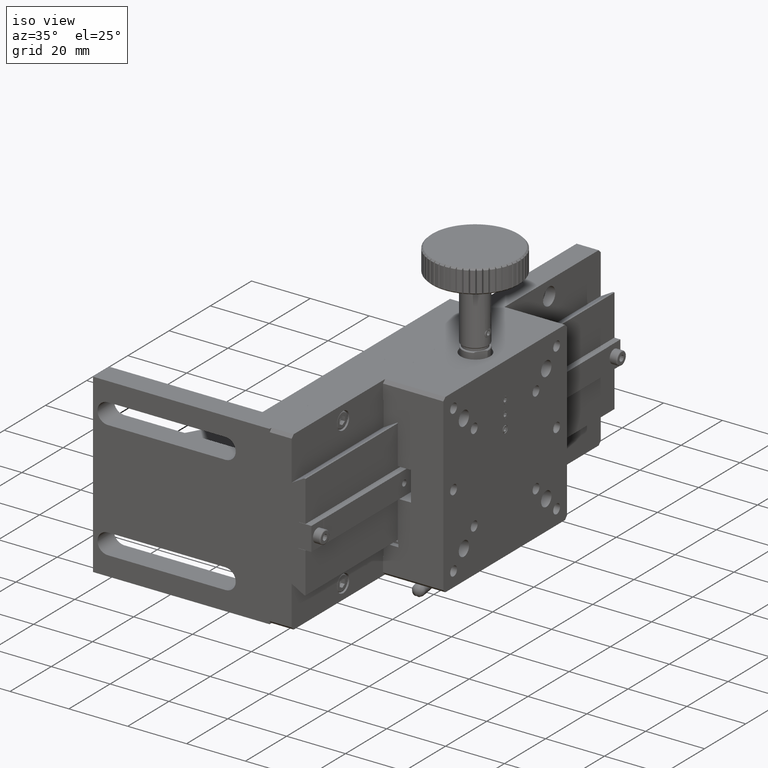
[diagram: clean part render]
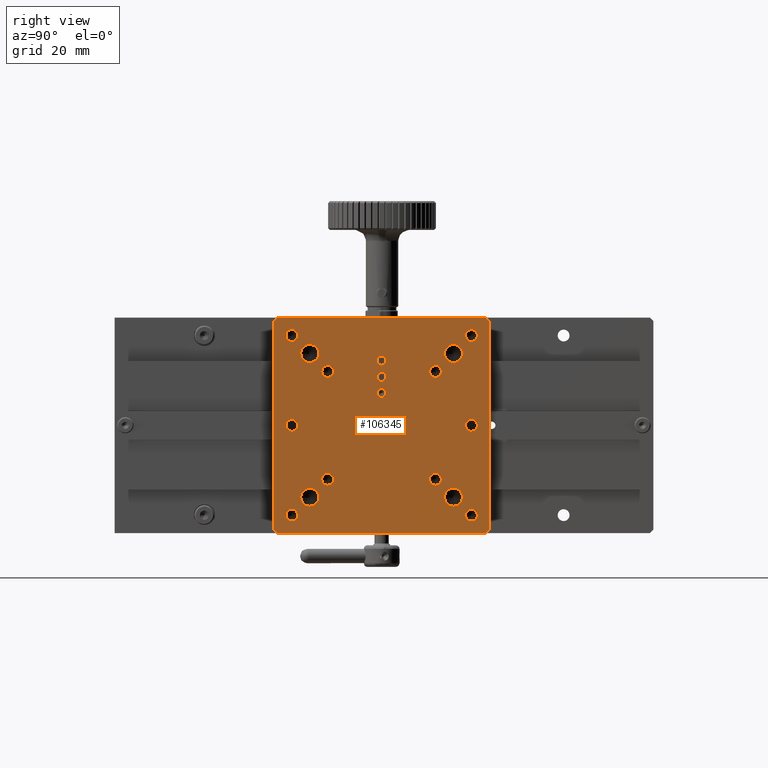
[diagram: tour spotlight — one face highlighted and labeled with its STEP entity id]
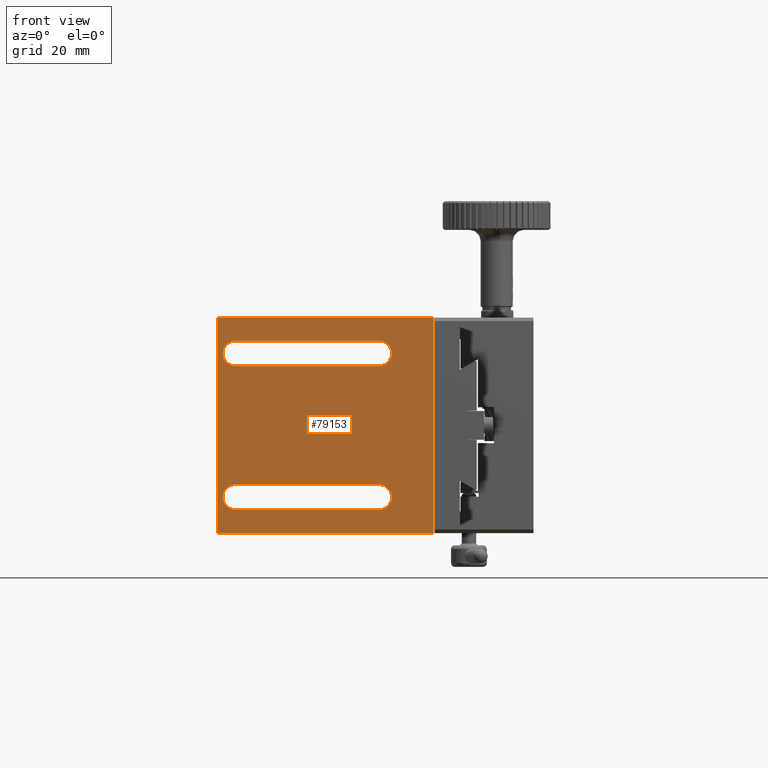
[diagram: tour spotlight — one face highlighted and labeled with its STEP entity id]
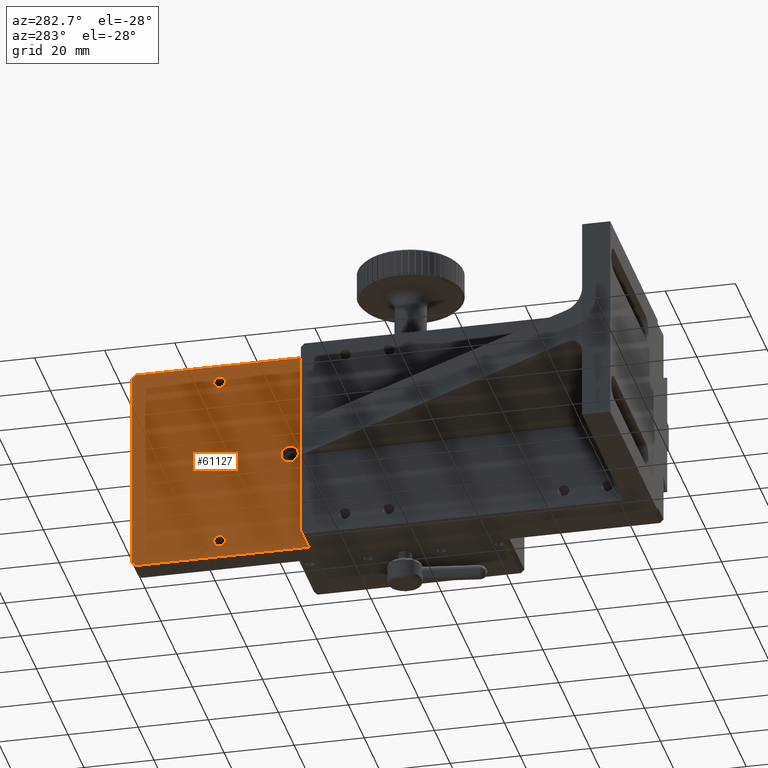
[diagram: tour spotlight — one face highlighted and labeled with its STEP entity id]
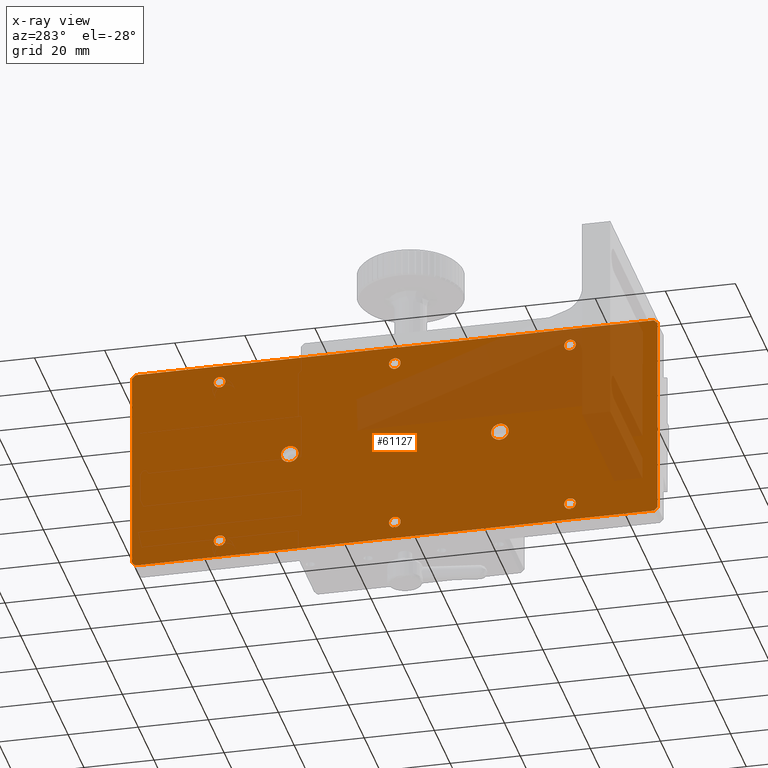
[diagram: x-ray of the same camera — body ghosted, this tour face saturated]
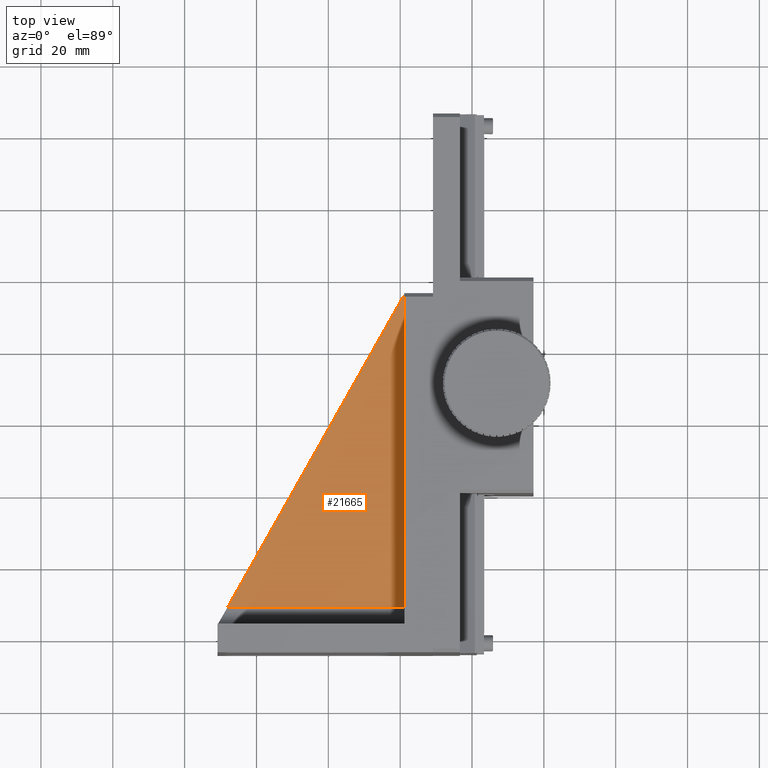
[diagram: tour spotlight — one face highlighted and labeled with its STEP entity id]
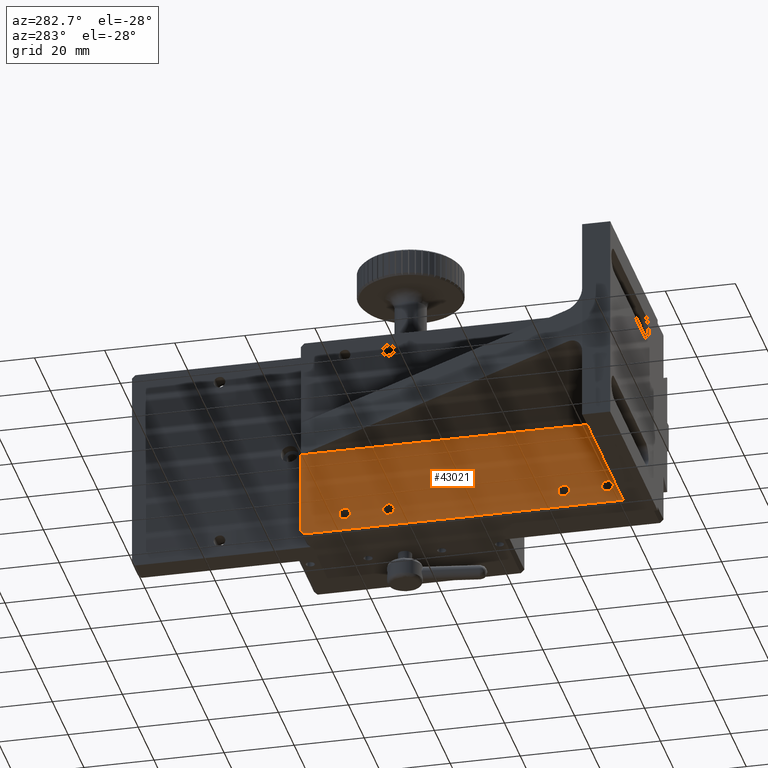
[diagram: tour spotlight — one face highlighted and labeled with its STEP entity id]
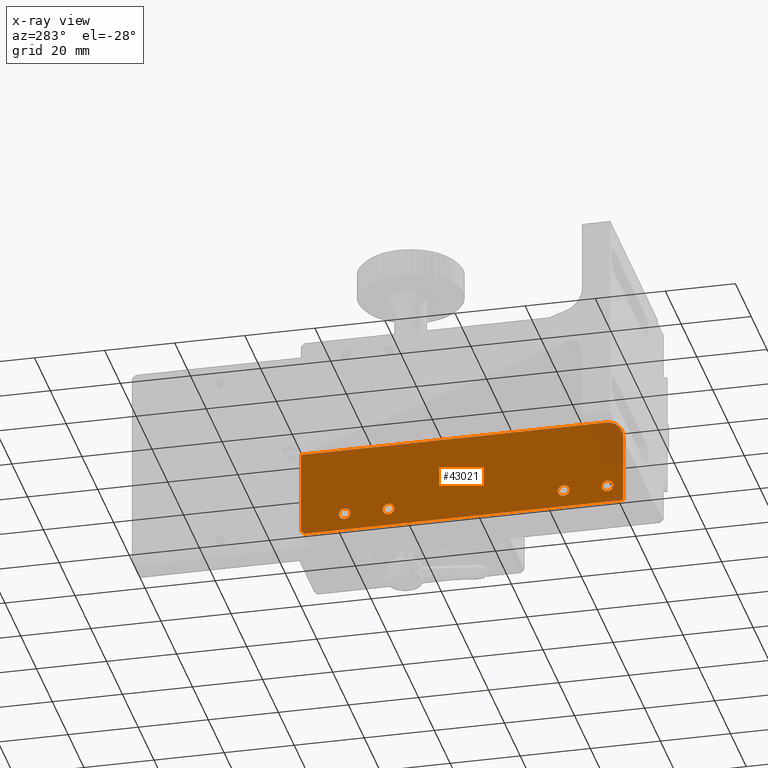
[diagram: x-ray of the same camera — body ghosted, this tour face saturated]
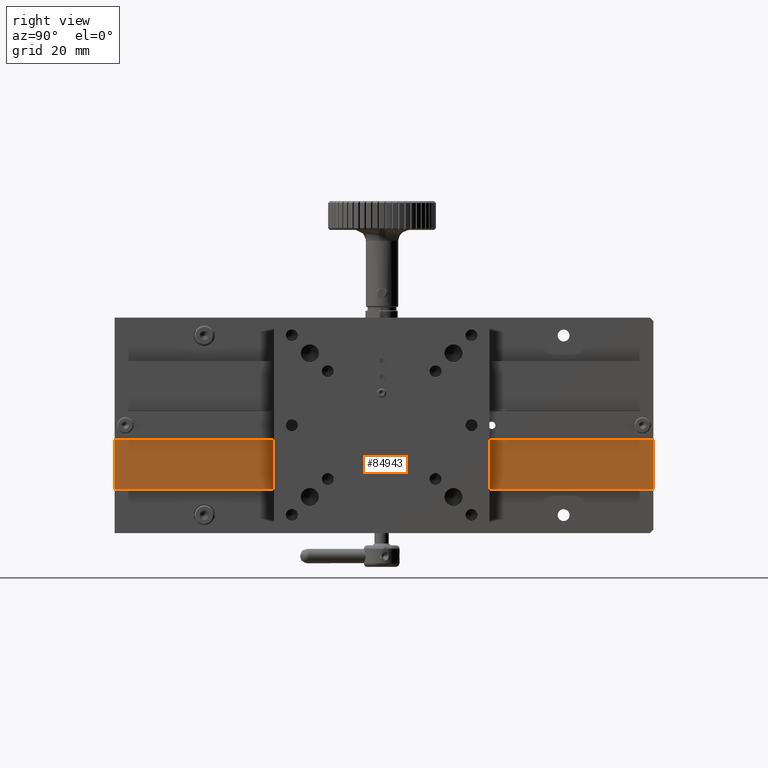
[diagram: tour spotlight — one face highlighted and labeled with its STEP entity id]
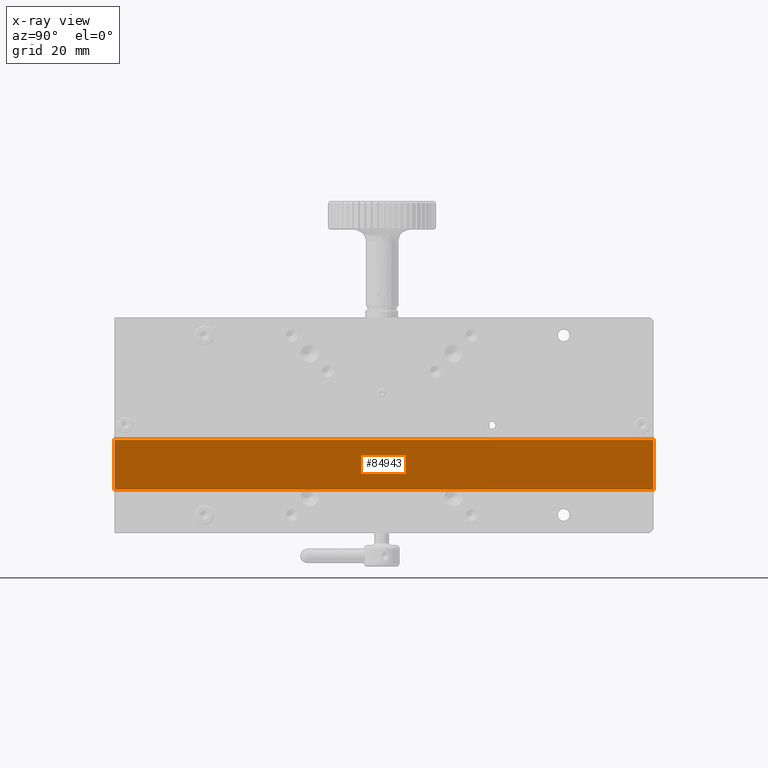
[diagram: x-ray of the same camera — body ghosted, this tour face saturated]
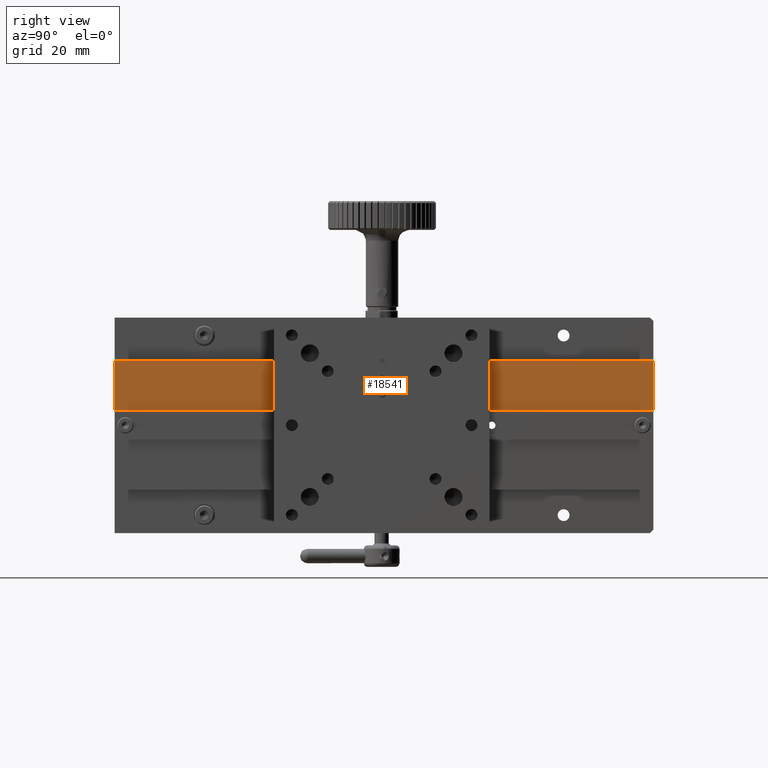
[diagram: tour spotlight — one face highlighted and labeled with its STEP entity id]
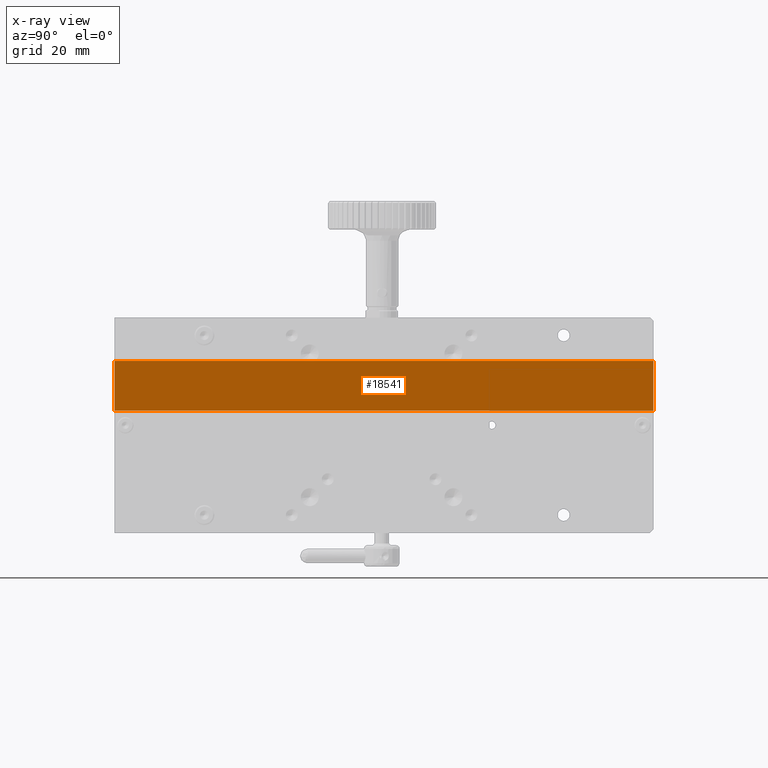
[diagram: x-ray of the same camera — body ghosted, this tour face saturated]
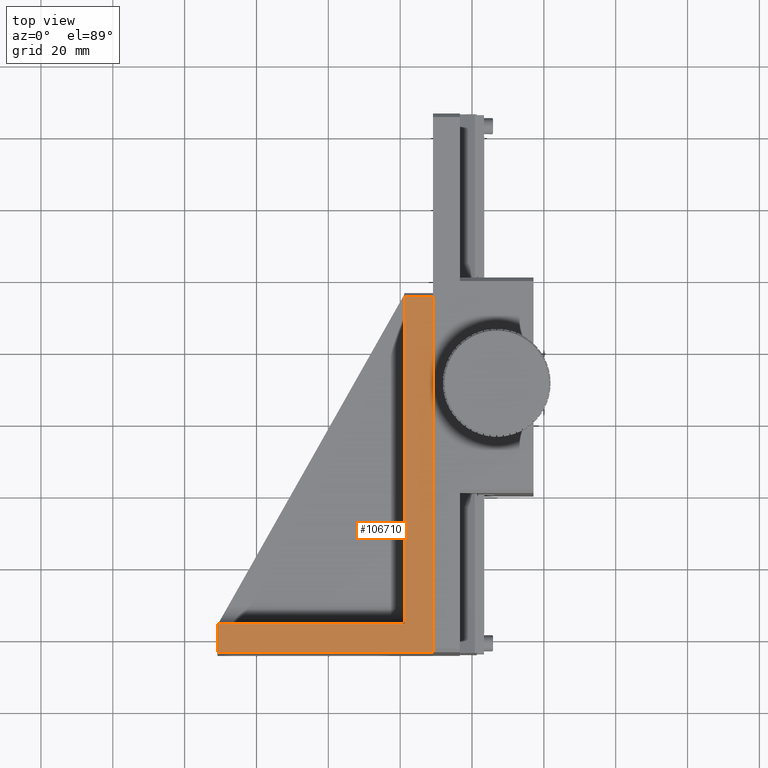
[diagram: tour spotlight — one face highlighted and labeled with its STEP entity id]
A machine part: a face-by-face anatomy tour. The part has 799 B-rep faces; the first image is the clean iso view, then the 8 largest visible faces are spotlighted one at a time (largest first), each with its STEP entity span.

Face 1 — right view, entity #106345. In plain terms, the highlighted planar face has unit normal (-1, -0, 0).
Definition (entity closure, byte-faithful):
#560 = CARTESIAN_POINT ( 'NONE',  ( 77.13262096467491347, 160.1540569599405899, 62.77940562858189111 ) ) ;
#940 = EDGE_CURVE ( 'NONE', #39938, #26963, #30658, .T. ) ;
#1278 = EDGE_CURVE ( 'NONE', #39848, #63079, #87879, .T. ) ;
#1574 = CARTESIAN_POINT ( 'NONE',  ( 77.13262096467555295, 160.1540569599401636, 121.7794056285819266 ) ) ;
#1776 = DIRECTION ( 'NONE',  ( 1.000000000000000000, 3.491481338843212636E-15, -1.047444401652937482E-14 ) ) ;
#2815 = AXIS2_PLACEMENT_3D ( 'NONE', #28545, #53368, #86310 ) ;
#3218 = VERTEX_POINT ( 'NONE', #66940 ) ;
#3273 = DIRECTION ( 'NONE',  ( -8.410780489584526369E-15, 0.000000000000000000, -1.000000000000000000 ) ) ;
#3898 = DIRECTION ( 'NONE',  ( -8.410780489584526369E-15, 0.000000000000000000, -1.000000000000000000 ) ) ;
#4089 = LINE ( 'NONE', #38086, #84103 ) ;
#4711 = AXIS2_PLACEMENT_3D ( 'NONE', #36517, #71529, #102305 ) ;
#5931 = VERTEX_POINT ( 'NONE', #78040 ) ;
#6041 = EDGE_LOOP ( 'NONE', ( #63654 ) ) ;
#7634 = EDGE_LOOP ( 'NONE', ( #64770, #60993, #18839, #80242, #58903, #96436, #12797, #34906 ) ) ;
#7935 = EDGE_LOOP ( 'NONE', ( #60392 ) ) ;
#8265 = EDGE_LOOP ( 'NONE', ( #59640 ) ) ;
#9358 = LINE ( 'NONE', #99449, #37918 ) ;
#9696 = AXIS2_PLACEMENT_3D ( 'NONE', #101622, #35836, #42876 ) ;
#11392 = CARTESIAN_POINT ( 'NONE',  ( 77.13262096467566664, 105.1540569599401920, 117.7794056285815429 ) ) ;
#12029 = ORIENTED_EDGE ( 'NONE', *, *, #83912, .F. ) ;
#12307 = CIRCLE ( 'NONE', #55337, 1.649999999999984812 ) ;
#12512 = EDGE_CURVE ( 'NONE', #26963, #24800, #106323, .T. ) ;
#12797 = ORIENTED_EDGE ( 'NONE', *, *, #46896, .F. ) ;
#13281 = CARTESIAN_POINT ( 'NONE',  ( 77.13262096467559559, 110.1540569599402346, 112.7794056285815429 ) ) ;
#13674 = CARTESIAN_POINT ( 'NONE',  ( 77.13262096467555295, 160.1540569599401636, 121.7794056285819693 ) ) ;
#13944 = CARTESIAN_POINT ( 'NONE',  ( 77.13262096467553874, 160.1540569599405899, 122.7794056285815003 ) ) ;
#14245 = EDGE_LOOP ( 'NONE', ( #87865 ) ) ;
#14556 = EDGE_LOOP ( 'NONE', ( #37366 ) ) ;
#15512 = AXIS2_PLACEMENT_3D ( 'NONE', #54089, #37897, #3898 ) ;
#15731 = FACE_BOUND ( 'NONE', #14245, .T. ) ;
#18839 = ORIENTED_EDGE ( 'NONE', *, *, #72570, .T. ) ;
#19353 = EDGE_CURVE ( 'NONE', #21172, #21172, #20966, .T. ) ;
#19728 = ORIENTED_EDGE ( 'NONE', *, *, #43748, .F. ) ;
#20111 = AXIS2_PLACEMENT_3D ( 'NONE', #90659, #91195, #56136 ) ;
#20425 = EDGE_LOOP ( 'NONE', ( #59596 ) ) ;
#20621 = AXIS2_PLACEMENT_3D ( 'NONE', #96454, #31189, #64092 ) ;
#20639 = VERTEX_POINT ( 'NONE', #96662 ) ;
#20966 = CIRCLE ( 'NONE', #60614, 1.250000000000001110 ) ;
#21172 = VERTEX_POINT ( 'NONE', #94543 ) ;
#21624 = CARTESIAN_POINT ( 'NONE',  ( 77.13262096467542506, 145.1540569599402772, 107.7794056285818272 ) ) ;
#21995 = CIRCLE ( 'NONE', #68497, 1.649999999999984812 ) ;
#22512 = CARTESIAN_POINT ( 'NONE',  ( 77.13262096467546769, 130.1540569599402772, 106.2794056285817135 ) ) ;
#23024 = EDGE_CURVE ( 'NONE', #20639, #20639, #78596, .T. ) ;
#23173 = VERTEX_POINT ( 'NONE', #57126 ) ;
#23226 = DIRECTION ( 'NONE',  ( 1.000000000000000000, 3.491481338843212636E-15, -1.047444401652937482E-14 ) ) ;
#23288 = FACE_BOUND ( 'NONE', #14556, .T. ) ;
#23422 = EDGE_CURVE ( 'NONE', #39848, #5931, #27080, .T. ) ;
#24357 = CARTESIAN_POINT ( 'NONE',  ( 77.13262096467491347, 160.1540569599405899, 62.77940562858190532 ) ) ;
#24800 = VERTEX_POINT ( 'NONE', #93830 ) ;
#25417 = VERTEX_POINT ( 'NONE', #100376 ) ;
#26902 = AXIS2_PLACEMENT_3D ( 'NONE', #72748, #105624, #64633 ) ;
#26963 = VERTEX_POINT ( 'NONE', #50925 ) ;
#27080 = LINE ( 'NONE', #84830, #45839 ) ;
#27419 = DIRECTION ( 'NONE',  ( -1.110223024625155594E-14, 0.000000000000000000, -1.000000000000000000 ) ) ;
#27467 = CARTESIAN_POINT ( 'NONE',  ( 77.13262096467555295, 159.1540569599401636, 122.7794056285818556 ) ) ;
#27469 = CIRCLE ( 'NONE', #20621, 1.649999999999984812 ) ;
#27896 = EDGE_LOOP ( 'NONE', ( #71158 ) ) ;
#28545 = CARTESIAN_POINT ( 'NONE',  ( 77.13262096467555295, 115.1540569599402914, 107.7794056285815998 ) ) ;
#29046 = ORIENTED_EDGE ( 'NONE', *, *, #39887, .F. ) ;
#30405 = VERTEX_POINT ( 'NONE', #13674 ) ;
#30658 = LINE ( 'NONE', #63024, #83913 ) ;
#30851 = FACE_BOUND ( 'NONE', #27896, .T. ) ;
#31001 = VERTEX_POINT ( 'NONE', #104337 ) ;
#31189 = DIRECTION ( 'NONE',  ( 1.000000000000000000, 3.491481338843212636E-15, -1.047444401652937482E-14 ) ) ;
#31241 = ORIENTED_EDGE ( 'NONE', *, *, #58981, .F. ) ;
#31671 = DIRECTION ( 'NONE',  ( -1.110223024625155594E-14, 0.000000000000000000, -1.000000000000000000 ) ) ;
#31936 = EDGE_LOOP ( 'NONE', ( #68113 ) ) ;
#32441 = FACE_BOUND ( 'NONE', #55710, .T. ) ;
#33918 = CARTESIAN_POINT ( 'NONE',  ( 77.13262096467508400, 145.1540569599405046, 76.12940562858183569 ) ) ;
#34906 = ORIENTED_EDGE ( 'NONE', *, *, #1278, .F. ) ;
#35836 = DIRECTION ( 'NONE',  ( 1.000000000000000000, 3.491481338843212636E-15, -1.047444401652937482E-14 ) ) ;
#36488 = CIRCLE ( 'NONE', #41648, 1.250000000000001110 ) ;
#36517 = CARTESIAN_POINT ( 'NONE',  ( 77.13262096467514084, 105.1540569599405472, 67.77940562858151452 ) ) ;
#36780 = EDGE_CURVE ( 'NONE', #40544, #40544, #56393, .T. ) ;
#37366 = ORIENTED_EDGE ( 'NONE', *, *, #47768, .F. ) ;
#37474 = EDGE_CURVE ( 'NONE', #106335, #106335, #77061, .T. ) ;
#37525 = DIRECTION ( 'NONE',  ( -0.000000000000000000, 0.7071067811865474617, -0.7071067811865474617 ) ) ;
#37897 = DIRECTION ( 'NONE',  ( 1.000000000000000000, 3.491481338843212636E-15, -1.047444401652937482E-14 ) ) ;
#37918 = VECTOR ( 'NONE', #91383, 1000.000000000000000 ) ;
#37996 = EDGE_LOOP ( 'NONE', ( #19728 ) ) ;
#38086 = CARTESIAN_POINT ( 'NONE',  ( 77.13262096467491347, 160.1540569599401636, 62.77940562858190532 ) ) ;
#38222 = DIRECTION ( 'NONE',  ( -0.000000000000000000, -0.7071067811865474617, -0.7071067811865474617 ) ) ;
#38613 = DIRECTION ( 'NONE',  ( -1.047444401652937482E-14, -0.000000000000000000, -1.000000000000000000 ) ) ;
#38938 = FACE_OUTER_BOUND ( 'NONE', #7634, .T. ) ;
#39035 = CIRCLE ( 'NONE', #2815, 1.649999999999998579 ) ;
#39140 = CARTESIAN_POINT ( 'NONE',  ( 77.13262096467541085, 130.1540569599403057, 101.7794056285816993 ) ) ;
#39484 = PLANE ( 'NONE',  #55155 ) ;
#39614 = CARTESIAN_POINT ( 'NONE',  ( 77.13262096467502715, 150.1540569599405046, 72.77940562858182716 ) ) ;
#39682 = DIRECTION ( 'NONE',  ( -1.110223024625155594E-14, 0.000000000000000000, -1.000000000000000000 ) ) ;
#39776 = DIRECTION ( 'NONE',  ( 1.000000000000000000, 3.491481338843212636E-15, -1.047444401652937482E-14 ) ) ;
#39848 = VERTEX_POINT ( 'NONE', #63144 ) ;
#39887 = EDGE_CURVE ( 'NONE', #97717, #97717, #21995, .T. ) ;
#39938 = VERTEX_POINT ( 'NONE', #95532 ) ;
#39960 = DIRECTION ( 'NONE',  ( -8.410780489584597367E-15, 0.000000000000000000, -1.000000000000000000 ) ) ;
#40024 = FACE_BOUND ( 'NONE', #7935, .T. ) ;
#40544 = VERTEX_POINT ( 'NONE', #80505 ) ;
#41076 = CARTESIAN_POINT ( 'NONE',  ( 77.13262096467541085, 145.1540569599402772, 106.1294056285818357 ) ) ;
#41648 = AXIS2_PLACEMENT_3D ( 'NONE', #22512, #39776, #31671 ) ;
#42583 = AXIS2_PLACEMENT_3D ( 'NONE', #11392, #44304, #3273 ) ;
#42778 = DIRECTION ( 'NONE',  ( -1.110223024625155594E-14, 0.000000000000000000, -1.000000000000000000 ) ) ;
#42876 = DIRECTION ( 'NONE',  ( -8.410780489584597367E-15, 0.000000000000000000, -1.000000000000000000 ) ) ;
#43386 = EDGE_CURVE ( 'NONE', #30405, #39938, #4089, .T. ) ;
#43600 = CARTESIAN_POINT ( 'NONE',  ( 77.13262096467497031, 155.1540569599405615, 66.12940562858187832 ) ) ;
#43704 = CIRCLE ( 'NONE', #103976, 2.500000000000002220 ) ;
#43748 = EDGE_CURVE ( 'NONE', #3218, #3218, #92709, .T. ) ;
#44270 = EDGE_LOOP ( 'NONE', ( #29046 ) ) ;
#44304 = DIRECTION ( 'NONE',  ( 1.000000000000000000, 3.491481338843212636E-15, -1.047444401652937482E-14 ) ) ;
#45092 = LINE ( 'NONE', #70424, #86650 ) ;
#45839 = VECTOR ( 'NONE', #91848, 999.9999999999998863 ) ;
#45853 = CARTESIAN_POINT ( 'NONE',  ( 77.13262096467521189, 155.1540569599403909, 91.12940562858189253 ) ) ;
#46024 = CIRCLE ( 'NONE', #42583, 1.649999999999998579 ) ;
#46120 = EDGE_CURVE ( 'NONE', #60440, #60440, #46024, .T. ) ;
#46180 = DIRECTION ( 'NONE',  ( -1.110223024625155594E-14, 0.000000000000000000, -1.000000000000000000 ) ) ;
#46259 = CARTESIAN_POINT ( 'NONE',  ( 77.13262096467551032, 130.1540569599402488, 110.7794056285816993 ) ) ;
#46896 = EDGE_CURVE ( 'NONE', #63079, #30405, #74454, .T. ) ;
#47768 = EDGE_CURVE ( 'NONE', #25417, #25417, #27469, .T. ) ;
#48108 = FACE_BOUND ( 'NONE', #44270, .T. ) ;
#50112 = CARTESIAN_POINT ( 'NONE',  ( 77.13262096467553874, 115.1540569599402914, 106.1294056285815941 ) ) ;
#50860 = CARTESIAN_POINT ( 'NONE',  ( 77.13262096467516926, 110.1540569599405188, 72.77940562858155715 ) ) ;
#50925 = CARTESIAN_POINT ( 'NONE',  ( 77.13262096467497031, 159.1540569599405899, 62.77940562858189111 ) ) ;
#51846 = EDGE_LOOP ( 'NONE', ( #31241 ) ) ;
#53050 = EDGE_LOOP ( 'NONE', ( #57366 ) ) ;
#53368 = DIRECTION ( 'NONE',  ( 1.000000000000000000, 3.491481338843212636E-15, -1.047444401652937482E-14 ) ) ;
#54089 = CARTESIAN_POINT ( 'NONE',  ( 77.13262096467541085, 105.1540569599403767, 92.77940562858152873 ) ) ;
#54526 = DIRECTION ( 'NONE',  ( -8.410780489584597367E-15, 0.000000000000000000, -1.000000000000000000 ) ) ;
#55155 = AXIS2_PLACEMENT_3D ( 'NONE', #24357, #57243, #82087 ) ;
#55337 = AXIS2_PLACEMENT_3D ( 'NONE', #55588, #63684, #54526 ) ;
#55588 = CARTESIAN_POINT ( 'NONE',  ( 77.13262096467522611, 155.1540569599403909, 92.77940562858186979 ) ) ;
#55656 = FACE_BOUND ( 'NONE', #97489, .T. ) ;
#55710 = EDGE_LOOP ( 'NONE', ( #12029 ) ) ;
#56136 = DIRECTION ( 'NONE',  ( -8.410780489584597367E-15, 0.000000000000000000, -1.000000000000000000 ) ) ;
#56393 = CIRCLE ( 'NONE', #82231, 2.500000000000002220 ) ;
#57126 = CARTESIAN_POINT ( 'NONE',  ( 77.13262096467545348, 130.1540569599402772, 105.0294056285817135 ) ) ;
#57243 = DIRECTION ( 'NONE',  ( -1.000000000000000000, -3.491481338843151499E-15, 1.047444401652937482E-14 ) ) ;
#57366 = ORIENTED_EDGE ( 'NONE', *, *, #37474, .F. ) ;
#58903 = ORIENTED_EDGE ( 'NONE', *, *, #940, .F. ) ;
#58981 = EDGE_CURVE ( 'NONE', #61506, #61506, #12307, .T. ) ;
#59596 = ORIENTED_EDGE ( 'NONE', *, *, #100917, .F. ) ;
#59640 = ORIENTED_EDGE ( 'NONE', *, *, #86365, .F. ) ;
#60312 = VERTEX_POINT ( 'NONE', #50112 ) ;
#60392 = ORIENTED_EDGE ( 'NONE', *, *, #46120, .F. ) ;
#60440 = VERTEX_POINT ( 'NONE', #99304 ) ;
#60614 = AXIS2_PLACEMENT_3D ( 'NONE', #39140, #104927, #39682 ) ;
#60993 = ORIENTED_EDGE ( 'NONE', *, *, #100241, .F. ) ;
#61506 = VERTEX_POINT ( 'NONE', #45853 ) ;
#61973 = DIRECTION ( 'NONE',  ( -3.491481338843151499E-15, 1.000000000000000000, 3.657132581846961934E-29 ) ) ;
#63024 = CARTESIAN_POINT ( 'NONE',  ( 77.13262096467491347, 160.1540569599405899, 63.77940562858189111 ) ) ;
#63079 = VERTEX_POINT ( 'NONE', #27467 ) ;
#63144 = CARTESIAN_POINT ( 'NONE',  ( 77.13262096467568085, 101.1540569599402062, 122.7794056285815429 ) ) ;
#63632 = VERTEX_POINT ( 'NONE', #64693 ) ;
#63654 = ORIENTED_EDGE ( 'NONE', *, *, #23024, .F. ) ;
#63684 = DIRECTION ( 'NONE',  ( 1.000000000000000000, 3.491481338843212636E-15, -1.047444401652937482E-14 ) ) ;
#63967 = DIRECTION ( 'NONE',  ( 1.000000000000000000, 3.491481338843212636E-15, -1.047444401652937482E-14 ) ) ;
#64092 = DIRECTION ( 'NONE',  ( -8.410780489584597367E-15, 0.000000000000000000, -1.000000000000000000 ) ) ;
#64633 = DIRECTION ( 'NONE',  ( -8.410780489584526369E-15, 0.000000000000000000, -1.000000000000000000 ) ) ;
#64693 = CARTESIAN_POINT ( 'NONE',  ( 77.13262096467543927, 150.1540569599402488, 110.2794056285818414 ) ) ;
#64770 = ORIENTED_EDGE ( 'NONE', *, *, #23422, .T. ) ;
#64808 = FACE_BOUND ( 'NONE', #102983, .T. ) ;
#65336 = FACE_BOUND ( 'NONE', #8265, .T. ) ;
#66332 = DIRECTION ( 'NONE',  ( -0.000000000000000000, 0.7071067811865549002, -0.7071067811865401342 ) ) ;
#66599 = CIRCLE ( 'NONE', #20111, 1.649999999999984812 ) ;
#66940 = CARTESIAN_POINT ( 'NONE',  ( 77.13262096467558138, 110.1540569599402346, 110.2794056285815429 ) ) ;
#68113 = ORIENTED_EDGE ( 'NONE', *, *, #69144, .F. ) ;
#68401 = VERTEX_POINT ( 'NONE', #43600 ) ;
#68497 = AXIS2_PLACEMENT_3D ( 'NONE', #21624, #23226, #39960 ) ;
#69043 = EDGE_CURVE ( 'NONE', #80918, #80918, #95012, .T. ) ;
#69144 = EDGE_CURVE ( 'NONE', #23173, #23173, #36488, .T. ) ;
#69340 = VERTEX_POINT ( 'NONE', #104480 ) ;
#70424 = CARTESIAN_POINT ( 'NONE',  ( 77.13262096467512663, 101.1540569599404336, 62.77940562858164242 ) ) ;
#70891 = AXIS2_PLACEMENT_3D ( 'NONE', #46259, #79195, #27419 ) ;
#71158 = ORIENTED_EDGE ( 'NONE', *, *, #36780, .F. ) ;
#71529 = DIRECTION ( 'NONE',  ( 1.000000000000000000, 3.491481338843212636E-15, -1.047444401652937482E-14 ) ) ;
#71843 = FACE_BOUND ( 'NONE', #96038, .T. ) ;
#72570 = EDGE_CURVE ( 'NONE', #69340, #24800, #45092, .T. ) ;
#72748 = CARTESIAN_POINT ( 'NONE',  ( 77.13262096467521189, 115.1540569599404762, 77.77940562858159979 ) ) ;
#72976 = ORIENTED_EDGE ( 'NONE', *, *, #69043, .F. ) ;
#74454 = LINE ( 'NONE', #1574, #92934 ) ;
#75220 = ORIENTED_EDGE ( 'NONE', *, *, #76195, .F. ) ;
#76004 = CARTESIAN_POINT ( 'NONE',  ( 77.13262096467514084, 110.1540569599405188, 70.27940562858155715 ) ) ;
#76023 = AXIS2_PLACEMENT_3D ( 'NONE', #50860, #102061, #42778 ) ;
#76116 = DIRECTION ( 'NONE',  ( 3.491481338843151499E-15, -1.000000000000000000, -3.657132581846961934E-29 ) ) ;
#76195 = EDGE_CURVE ( 'NONE', #63632, #63632, #43704, .T. ) ;
#77061 = CIRCLE ( 'NONE', #4711, 1.649999999999998579 ) ;
#78040 = CARTESIAN_POINT ( 'NONE',  ( 77.13262096467573770, 100.1540569599402914, 121.7794056285816424 ) ) ;
#78596 = CIRCLE ( 'NONE', #26902, 1.649999999999998579 ) ;
#79195 = DIRECTION ( 'NONE',  ( 1.000000000000000000, 3.491481338843212636E-15, -1.047444401652937482E-14 ) ) ;
#79943 = EDGE_CURVE ( 'NONE', #89538, #89538, #89799, .T. ) ;
#80242 = ORIENTED_EDGE ( 'NONE', *, *, #12512, .F. ) ;
#80501 = FACE_BOUND ( 'NONE', #37996, .T. ) ;
#80505 = CARTESIAN_POINT ( 'NONE',  ( 77.13262096467499873, 150.1540569599405046, 70.27940562858182716 ) ) ;
#80918 = VERTEX_POINT ( 'NONE', #90062 ) ;
#81001 = CIRCLE ( 'NONE', #15512, 1.649999999999998579 ) ;
#81611 = ORIENTED_EDGE ( 'NONE', *, *, #19353, .F. ) ;
#82087 = DIRECTION ( 'NONE',  ( 1.047444401652937482E-14, 0.000000000000000000, 1.000000000000000000 ) ) ;
#82231 = AXIS2_PLACEMENT_3D ( 'NONE', #39614, #105403, #103796 ) ;
#82471 = ORIENTED_EDGE ( 'NONE', *, *, #87077, .F. ) ;
#83688 = VECTOR ( 'NONE', #61973, 1000.000000000000000 ) ;
#83825 = CARTESIAN_POINT ( 'NONE',  ( 77.13262096467546769, 150.1540569599402488, 112.7794056285818414 ) ) ;
#83912 = EDGE_CURVE ( 'NONE', #91652, #91652, #102699, .T. ) ;
#83913 = VECTOR ( 'NONE', #38222, 1000.000000000000114 ) ;
#84103 = VECTOR ( 'NONE', #38613, 1000.000000000000000 ) ;
#84830 = CARTESIAN_POINT ( 'NONE',  ( 77.13262096467573770, 101.1540569599401636, 122.7794056285815003 ) ) ;
#86310 = DIRECTION ( 'NONE',  ( -8.410780489584526369E-15, 0.000000000000000000, -1.000000000000000000 ) ) ;
#86365 = EDGE_CURVE ( 'NONE', #68401, #68401, #66599, .T. ) ;
#86650 = VECTOR ( 'NONE', #37525, 1000.000000000000114 ) ;
#87077 = EDGE_CURVE ( 'NONE', #60312, #60312, #39035, .T. ) ;
#87332 = EDGE_LOOP ( 'NONE', ( #81611 ) ) ;
#87865 = ORIENTED_EDGE ( 'NONE', *, *, #79943, .F. ) ;
#87879 = LINE ( 'NONE', #13944, #83688 ) ;
#87892 = VECTOR ( 'NONE', #76116, 1000.000000000000000 ) ;
#88594 = FACE_BOUND ( 'NONE', #51846, .T. ) ;
#89538 = VERTEX_POINT ( 'NONE', #76004 ) ;
#89661 = FACE_BOUND ( 'NONE', #6041, .T. ) ;
#89799 = CIRCLE ( 'NONE', #76023, 2.500000000000002220 ) ;
#90062 = CARTESIAN_POINT ( 'NONE',  ( 77.13262096467549611, 130.1540569599402488, 109.5294056285816993 ) ) ;
#90179 = FACE_BOUND ( 'NONE', #31936, .T. ) ;
#90659 = CARTESIAN_POINT ( 'NONE',  ( 77.13262096467498452, 155.1540569599405615, 67.77940562858186979 ) ) ;
#91195 = DIRECTION ( 'NONE',  ( 1.000000000000000000, 3.491481338843212636E-15, -1.047444401652937482E-14 ) ) ;
#91383 = DIRECTION ( 'NONE',  ( 1.047444401652937482E-14, 0.000000000000000000, 1.000000000000000000 ) ) ;
#91652 = VERTEX_POINT ( 'NONE', #33918 ) ;
#91848 = DIRECTION ( 'NONE',  ( -0.000000000000000000, -0.7071067811865376918, -0.7071067811865574537 ) ) ;
#92709 = CIRCLE ( 'NONE', #106468, 2.500000000000002220 ) ;
#92934 = VECTOR ( 'NONE', #66332, 1000.000000000000000 ) ;
#93830 = CARTESIAN_POINT ( 'NONE',  ( 77.13262096467512663, 101.1540569599404478, 62.77940562858158557 ) ) ;
#94543 = CARTESIAN_POINT ( 'NONE',  ( 77.13262096467539664, 130.1540569599403057, 100.5294056285816993 ) ) ;
#95012 = CIRCLE ( 'NONE', #70891, 1.250000000000001110 ) ;
#95532 = CARTESIAN_POINT ( 'NONE',  ( 77.13262096467506979, 160.1540569599405330, 63.77940562858182005 ) ) ;
#96038 = EDGE_LOOP ( 'NONE', ( #72976 ) ) ;
#96122 = FACE_BOUND ( 'NONE', #53050, .T. ) ;
#96436 = ORIENTED_EDGE ( 'NONE', *, *, #43386, .F. ) ;
#96454 = CARTESIAN_POINT ( 'NONE',  ( 77.13262096467549611, 155.1540569599401920, 117.7794056285818840 ) ) ;
#96658 = FACE_BOUND ( 'NONE', #87332, .T. ) ;
#96662 = CARTESIAN_POINT ( 'NONE',  ( 77.13262096467519768, 115.1540569599404762, 76.12940562858159410 ) ) ;
#97489 = EDGE_LOOP ( 'NONE', ( #82471 ) ) ;
#97717 = VERTEX_POINT ( 'NONE', #41076 ) ;
#99304 = CARTESIAN_POINT ( 'NONE',  ( 77.13262096467565243, 105.1540569599401920, 116.1294056285815373 ) ) ;
#99449 = CARTESIAN_POINT ( 'NONE',  ( 77.13262096467511242, 100.1540569599405899, 62.77940562858190532 ) ) ;
#100241 = EDGE_CURVE ( 'NONE', #69340, #5931, #9358, .T. ) ;
#100376 = CARTESIAN_POINT ( 'NONE',  ( 77.13262096467548190, 155.1540569599401920, 116.1294056285819067 ) ) ;
#100507 = DIRECTION ( 'NONE',  ( -1.110223024625155594E-14, 0.000000000000000000, -1.000000000000000000 ) ) ;
#100917 = EDGE_CURVE ( 'NONE', #31001, #31001, #81001, .T. ) ;
#101622 = CARTESIAN_POINT ( 'NONE',  ( 77.13262096467509821, 145.1540569599405046, 77.77940562858182716 ) ) ;
#102061 = DIRECTION ( 'NONE',  ( 1.000000000000000000, 3.491481338843212636E-15, -1.047444401652937482E-14 ) ) ;
#102305 = DIRECTION ( 'NONE',  ( -8.410780489584526369E-15, 0.000000000000000000, -1.000000000000000000 ) ) ;
#102699 = CIRCLE ( 'NONE', #9696, 1.649999999999984812 ) ;
#102983 = EDGE_LOOP ( 'NONE', ( #75220 ) ) ;
#103796 = DIRECTION ( 'NONE',  ( -1.110223024625155594E-14, 0.000000000000000000, -1.000000000000000000 ) ) ;
#103976 = AXIS2_PLACEMENT_3D ( 'NONE', #83825, #1776, #100507 ) ;
#104337 = CARTESIAN_POINT ( 'NONE',  ( 77.13262096467539664, 105.1540569599403767, 91.12940562858153726 ) ) ;
#104480 = CARTESIAN_POINT ( 'NONE',  ( 77.13262096467528295, 100.1540569599405046, 63.77940562858155715 ) ) ;
#104927 = DIRECTION ( 'NONE',  ( 1.000000000000000000, 3.491481338843212636E-15, -1.047444401652937482E-14 ) ) ;
#105277 = CARTESIAN_POINT ( 'NONE',  ( 77.13262096467512663, 105.1540569599405472, 66.12940562858152305 ) ) ;
#105403 = DIRECTION ( 'NONE',  ( 1.000000000000000000, 3.491481338843212636E-15, -1.047444401652937482E-14 ) ) ;
#105624 = DIRECTION ( 'NONE',  ( 1.000000000000000000, 3.491481338843212636E-15, -1.047444401652937482E-14 ) ) ;
#105802 = FACE_BOUND ( 'NONE', #20425, .T. ) ;
#106323 = LINE ( 'NONE', #560, #87892 ) ;
#106335 = VERTEX_POINT ( 'NONE', #105277 ) ;
#106345 = ADVANCED_FACE ( 'NONE', ( #15731, #80501, #64808, #30851, #105802, #38938, #71843, #90179, #96658, #48108, #55656, #89661, #32441, #88594, #23288, #40024, #96122, #65336 ), #39484, .F. ) ;
#106468 = AXIS2_PLACEMENT_3D ( 'NONE', #13281, #63967, #46180 ) ;

Face 2 — front view, entity #79153. In plain terms, the highlighted planar face has unit normal (0, 1, 0).
Definition (entity closure, byte-faithful):
#1246 = CARTESIAN_POINT ( 'NONE',  ( 49.13262096468554319, 55.81536696983124557, 62.77940562822313808 ) ) ;
#2194 = EDGE_CURVE ( 'NONE', #54443, #57867, #35441, .T. ) ;
#3397 = EDGE_CURVE ( 'NONE', #57044, #81466, #27191, .T. ) ;
#5158 = CIRCLE ( 'NONE', #65474, 3.499999999999999556 ) ;
#7709 = FACE_BOUND ( 'NONE', #48957, .T. ) ;
#9273 = CIRCLE ( 'NONE', #23073, 3.500000000000003109 ) ;
#11328 = VERTEX_POINT ( 'NONE', #39600 ) ;
#12344 = VECTOR ( 'NONE', #103859, 1000.000000000000000 ) ;
#13672 = CARTESIAN_POINT ( 'NONE',  ( 19.13262096468574924, 55.81536696983123846, 109.2794056282235289 ) ) ;
#14476 = LINE ( 'NONE', #70603, #29400 ) ;
#15766 = ORIENTED_EDGE ( 'NONE', *, *, #99356, .F. ) ;
#19140 = EDGE_CURVE ( 'NONE', #32768, #52636, #71504, .T. ) ;
#20278 = AXIS2_PLACEMENT_3D ( 'NONE', #41148, #33580, #22436 ) ;
#22436 = DIRECTION ( 'NONE',  ( -1.000000000000000000, 0.000000000000000000, 0.000000000000000000 ) ) ;
#23073 = AXIS2_PLACEMENT_3D ( 'NONE', #62175, #54083, #37891 ) ;
#23139 = VERTEX_POINT ( 'NONE', #54949 ) ;
#23434 = DIRECTION ( 'NONE',  ( -2.168404344971010347E-16, -1.000000000000000000, 1.514188661106530136E-30 ) ) ;
#23587 = DIRECTION ( 'NONE',  ( -1.000000000000000000, 0.000000000000000000, 0.000000000000000000 ) ) ;
#24046 = VECTOR ( 'NONE', #40929, 1000.000000000000000 ) ;
#24539 = DIRECTION ( 'NONE',  ( -1.000000000000000000, 0.000000000000000000, 6.982962677686266711E-15 ) ) ;
#25152 = ORIENTED_EDGE ( 'NONE', *, *, #104301, .F. ) ;
#25514 = FACE_BOUND ( 'NONE', #32136, .T. ) ;
#25870 = VECTOR ( 'NONE', #47626, 1000.000000000000000 ) ;
#26791 = CARTESIAN_POINT ( 'NONE',  ( 19.13262096468574924, 55.81536696983123846, 69.27940562822352888 ) ) ;
#27057 = ORIENTED_EDGE ( 'NONE', *, *, #49407, .F. ) ;
#27191 = CIRCLE ( 'NONE', #20278, 3.499999999999999556 ) ;
#28511 = VECTOR ( 'NONE', #92637, 1000.000000000000000 ) ;
#28955 = VECTOR ( 'NONE', #41920, 1000.000000000000000 ) ;
#29400 = VECTOR ( 'NONE', #72202, 1000.000000000000000 ) ;
#31018 = VERTEX_POINT ( 'NONE', #101495 ) ;
#32136 = EDGE_LOOP ( 'NONE', ( #38194, #27057, #104754, #54976 ) ) ;
#32768 = VERTEX_POINT ( 'NONE', #80180 ) ;
#33580 = DIRECTION ( 'NONE',  ( -2.168404344971010347E-16, -1.000000000000000000, 1.514188661106530136E-30 ) ) ;
#34722 = LINE ( 'NONE', #1246, #48244 ) ;
#35415 = LINE ( 'NONE', #26791, #28955 ) ;
#35441 = LINE ( 'NONE', #99650, #28511 ) ;
#35657 = VERTEX_POINT ( 'NONE', #63603 ) ;
#37891 = DIRECTION ( 'NONE',  ( -1.000000000000000000, 0.000000000000000000, 0.000000000000000000 ) ) ;
#38194 = ORIENTED_EDGE ( 'NONE', *, *, #71758, .F. ) ;
#38723 = ORIENTED_EDGE ( 'NONE', *, *, #76911, .F. ) ;
#39600 = CARTESIAN_POINT ( 'NONE',  ( 34.13262096468590556, 55.81536696983123136, 116.2794056282232589 ) ) ;
#39892 = AXIS2_PLACEMENT_3D ( 'NONE', #66495, #99403, #89230 ) ;
#40929 = DIRECTION ( 'NONE',  ( -1.000000000000000000, -0.000000000000000000, 0.000000000000000000 ) ) ;
#41148 = CARTESIAN_POINT ( 'NONE',  ( -5.867379035314114866, 55.81536696983123846, 112.7794056282235289 ) ) ;
#41920 = DIRECTION ( 'NONE',  ( 1.000000000000000000, 0.000000000000000000, -0.000000000000000000 ) ) ;
#45358 = CARTESIAN_POINT ( 'NONE',  ( 49.13262096468574924, 55.81536696983124557, 62.77940562822313808 ) ) ;
#46319 = CARTESIAN_POINT ( 'NONE',  ( -10.86737903531424720, 55.81536696983124557, 122.7794056282235715 ) ) ;
#47626 = DIRECTION ( 'NONE',  ( 1.000000000000000000, 0.000000000000000000, -0.000000000000000000 ) ) ;
#48244 = VECTOR ( 'NONE', #84896, 1000.000000000000000 ) ;
#48732 = PLANE ( 'NONE',  #39892 ) ;
#48957 = EDGE_LOOP ( 'NONE', ( #38723, #62182, #15766, #25152 ) ) ;
#49301 = DIRECTION ( 'NONE',  ( -1.000000000000000000, 0.000000000000000000, 0.000000000000000000 ) ) ;
#49407 = EDGE_CURVE ( 'NONE', #81466, #94441, #95663, .T. ) ;
#50092 = LINE ( 'NONE', #57630, #24046 ) ;
#52636 = VERTEX_POINT ( 'NONE', #46319 ) ;
#52746 = EDGE_CURVE ( 'NONE', #11328, #57044, #14476, .T. ) ;
#54083 = DIRECTION ( 'NONE',  ( -2.168404344971010347E-16, -1.000000000000000000, 1.514188661106530136E-30 ) ) ;
#54443 = VERTEX_POINT ( 'NONE', #45358 ) ;
#54949 = CARTESIAN_POINT ( 'NONE',  ( -5.867379035314405300, 55.81536696983123846, 69.27940562822352888 ) ) ;
#54976 = ORIENTED_EDGE ( 'NONE', *, *, #52746, .F. ) ;
#55275 = CARTESIAN_POINT ( 'NONE',  ( -5.867379035314392866, 55.81536696983123846, 72.77940562822351467 ) ) ;
#55573 = CIRCLE ( 'NONE', #79707, 3.500000000000003109 ) ;
#56199 = EDGE_LOOP ( 'NONE', ( #68687, #70375, #75714, #79751 ) ) ;
#56278 = FACE_OUTER_BOUND ( 'NONE', #56199, .T. ) ;
#57044 = VERTEX_POINT ( 'NONE', #95124 ) ;
#57630 = CARTESIAN_POINT ( 'NONE',  ( 19.13262096468574924, 55.81536696983123846, 76.27940562822323045 ) ) ;
#57867 = VERTEX_POINT ( 'NONE', #87589 ) ;
#58832 = CARTESIAN_POINT ( 'NONE',  ( -5.867379035314123747, 55.81536696983123846, 109.2794056282235289 ) ) ;
#61343 = EDGE_CURVE ( 'NONE', #57867, #52636, #82276, .T. ) ;
#62175 = CARTESIAN_POINT ( 'NONE',  ( 34.13262096468561424, 55.81536696983123136, 72.77940562822323045 ) ) ;
#62182 = ORIENTED_EDGE ( 'NONE', *, *, #93938, .F. ) ;
#63603 = CARTESIAN_POINT ( 'NONE',  ( 34.13262096468560003, 55.81536696983123136, 69.27940562822337256 ) ) ;
#63808 = VECTOR ( 'NONE', #24539, 1000.000000000000000 ) ;
#64992 = CARTESIAN_POINT ( 'NONE',  ( 49.13262096468595530, 55.81536696983124557, 122.7794056282231310 ) ) ;
#65474 = AXIS2_PLACEMENT_3D ( 'NONE', #55275, #23434, #49301 ) ;
#66495 = CARTESIAN_POINT ( 'NONE',  ( 19.13262096468574924, 55.81536696983123846, 92.77940562822334414 ) ) ;
#68687 = ORIENTED_EDGE ( 'NONE', *, *, #61343, .T. ) ;
#70375 = ORIENTED_EDGE ( 'NONE', *, *, #19140, .F. ) ;
#70603 = CARTESIAN_POINT ( 'NONE',  ( 19.13262096468574924, 55.81536696983123846, 116.2794056282232589 ) ) ;
#71504 = LINE ( 'NONE', #79103, #12344 ) ;
#71758 = EDGE_CURVE ( 'NONE', #94441, #11328, #55573, .T. ) ;
#72202 = DIRECTION ( 'NONE',  ( -1.000000000000000000, -0.000000000000000000, 0.000000000000000000 ) ) ;
#72905 = CARTESIAN_POINT ( 'NONE',  ( -5.867379035314376878, 55.81536696983123846, 76.27940562822338677 ) ) ;
#73757 = CARTESIAN_POINT ( 'NONE',  ( 34.13262096468589135, 55.81536696983123136, 112.7794056282232305 ) ) ;
#75714 = ORIENTED_EDGE ( 'NONE', *, *, #100318, .T. ) ;
#76911 = EDGE_CURVE ( 'NONE', #35657, #31018, #9273, .T. ) ;
#79103 = CARTESIAN_POINT ( 'NONE',  ( -10.86737903531445681, 55.81536696983123846, 92.77940562822334414 ) ) ;
#79153 = ADVANCED_FACE ( 'NONE', ( #56278, #25514, #7709 ), #48732, .F. ) ;
#79707 = AXIS2_PLACEMENT_3D ( 'NONE', #73757, #80810, #23587 ) ;
#79751 = ORIENTED_EDGE ( 'NONE', *, *, #2194, .T. ) ;
#80180 = CARTESIAN_POINT ( 'NONE',  ( -10.86737903531445859, 55.81536696983124557, 62.77940562822345782 ) ) ;
#80810 = DIRECTION ( 'NONE',  ( -2.168404344971010347E-16, -1.000000000000000000, 1.514188661106530136E-30 ) ) ;
#81239 = VERTEX_POINT ( 'NONE', #72905 ) ;
#81466 = VERTEX_POINT ( 'NONE', #58832 ) ;
#82276 = LINE ( 'NONE', #64992, #63808 ) ;
#84896 = DIRECTION ( 'NONE',  ( 1.000000000000000000, 0.000000000000000000, -6.982962677686266711E-15 ) ) ;
#87589 = CARTESIAN_POINT ( 'NONE',  ( 49.13262096468595530, 55.81536696983124557, 122.7794056282233441 ) ) ;
#89230 = DIRECTION ( 'NONE',  ( 0.000000000000000000, -0.000000000000000000, 1.000000000000000000 ) ) ;
#92637 = DIRECTION ( 'NONE',  ( 6.982962677686266711E-15, 0.000000000000000000, 1.000000000000000000 ) ) ;
#93938 = EDGE_CURVE ( 'NONE', #23139, #35657, #35415, .T. ) ;
#94441 = VERTEX_POINT ( 'NONE', #101205 ) ;
#95124 = CARTESIAN_POINT ( 'NONE',  ( -5.867379035314099767, 55.81536696983123846, 116.2794056282233868 ) ) ;
#95663 = LINE ( 'NONE', #13672, #25870 ) ;
#99356 = EDGE_CURVE ( 'NONE', #81239, #23139, #5158, .T. ) ;
#99403 = DIRECTION ( 'NONE',  ( 0.000000000000000000, 1.000000000000000000, 0.000000000000000000 ) ) ;
#99650 = CARTESIAN_POINT ( 'NONE',  ( 49.13262096468595530, 55.81536696983124557, 122.7794056282231310 ) ) ;
#100318 = EDGE_CURVE ( 'NONE', #32768, #54443, #34722, .T. ) ;
#101205 = CARTESIAN_POINT ( 'NONE',  ( 34.13262096468587714, 55.81536696983123136, 109.2794056282233868 ) ) ;
#101495 = CARTESIAN_POINT ( 'NONE',  ( 34.13262096468562845, 55.81536696983123136, 76.27940562822323045 ) ) ;
#103859 = DIRECTION ( 'NONE',  ( 0.000000000000000000, -0.000000000000000000, 1.000000000000000000 ) ) ;
#104301 = EDGE_CURVE ( 'NONE', #31018, #81239, #50092, .T. ) ;
#104754 = ORIENTED_EDGE ( 'NONE', *, *, #3397, .F. ) ;

Face 3 — auxiliary view, entity #61127. An x-ray twin of the same camera follows (body ghosted, this face saturated) — the face is partly hidden behind the body. In plain terms, the highlighted planar face has unit normal (1, 0, -0).
Definition (entity closure, byte-faithful):
#17 = AXIS2_PLACEMENT_3D ( 'NONE', #69411, #102308, #10622 ) ;
#1045 = AXIS2_PLACEMENT_3D ( 'NONE', #38745, #61968, #94345 ) ;
#1399 = CIRCLE ( 'NONE', #41015, 1.649999999999984812 ) ;
#2202 = EDGE_CURVE ( 'NONE', #96374, #5578, #41948, .T. ) ;
#3801 = VECTOR ( 'NONE', #104893, 1000.000000000000114 ) ;
#5216 = VECTOR ( 'NONE', #18956, 1000.000000000000000 ) ;
#5578 = VERTEX_POINT ( 'NONE', #71501 ) ;
#6039 = ORIENTED_EDGE ( 'NONE', *, *, #30597, .F. ) ;
#6290 = VECTOR ( 'NONE', #13564, 999.9999999999998863 ) ;
#6977 = CIRCLE ( 'NONE', #17, 1.649999999999984812 ) ;
#7415 = FACE_BOUND ( 'NONE', #76760, .T. ) ;
#7684 = DIRECTION ( 'NONE',  ( 1.047444401652937640E-14, -0.000000000000000000, 1.000000000000000000 ) ) ;
#7937 = DIRECTION ( 'NONE',  ( 1.000000000000000000, 3.491481338843182659E-15, -1.047444401652937640E-14 ) ) ;
#9537 = DIRECTION ( 'NONE',  ( 0.000000000000000000, -0.7071067811865329178, -0.7071067811865622277 ) ) ;
#9940 = EDGE_CURVE ( 'NONE', #50783, #31659, #45349, .T. ) ;
#10622 = DIRECTION ( 'NONE',  ( -8.410780489584597367E-15, 0.000000000000000000, -1.000000000000000000 ) ) ;
#11143 = CARTESIAN_POINT ( 'NONE',  ( 49.13262096468618978, 55.81536696983058476, 122.7794056282243957 ) ) ;
#13564 = DIRECTION ( 'NONE',  ( 0.000000000000000000, 0.7071067811865574537, -0.7071067811865376918 ) ) ;
#15580 = DIRECTION ( 'NONE',  ( -3.491481338843182659E-15, 1.000000000000000000, 3.657132581846995005E-29 ) ) ;
#16868 = CARTESIAN_POINT ( 'NONE',  ( 49.13262096468566398, 205.8153669698309898, 122.7794056282243957 ) ) ;
#17120 = EDGE_LOOP ( 'NONE', ( #50918 ) ) ;
#17874 = VERTEX_POINT ( 'NONE', #75057 ) ;
#18956 = DIRECTION ( 'NONE',  ( 3.491481338843182659E-15, -1.000000000000000000, -3.657132581846995005E-29 ) ) ;
#19252 = LINE ( 'NONE', #76963, #21654 ) ;
#20914 = ORIENTED_EDGE ( 'NONE', *, *, #2202, .F. ) ;
#21654 = VECTOR ( 'NONE', #9537, 1000.000000000000000 ) ;
#22364 = EDGE_CURVE ( 'NONE', #85956, #85956, #95871, .T. ) ;
#23296 = EDGE_CURVE ( 'NONE', #65360, #58991, #81636, .T. ) ;
#23450 = ORIENTED_EDGE ( 'NONE', *, *, #50341, .F. ) ;
#23734 = AXIS2_PLACEMENT_3D ( 'NONE', #61048, #100450, #75675 ) ;
#24888 = VERTEX_POINT ( 'NONE', #49161 ) ;
#25958 = VERTEX_POINT ( 'NONE', #76641 ) ;
#26558 = CARTESIAN_POINT ( 'NONE',  ( 49.13262096468569951, 180.8153669698306487, 117.7794056282242252 ) ) ;
#27006 = VERTEX_POINT ( 'NONE', #91239 ) ;
#27079 = CIRCLE ( 'NONE', #70127, 2.500000000000002220 ) ;
#27123 = EDGE_LOOP ( 'NONE', ( #77149, #63230, #65455, #28422, #63795, #53204, #105391, #20914 ) ) ;
#28141 = CARTESIAN_POINT ( 'NONE',  ( 49.13262096468579898, 204.8153669698305919, 122.7794056282243673 ) ) ;
#28422 = ORIENTED_EDGE ( 'NONE', *, *, #23296, .F. ) ;
#28589 = EDGE_CURVE ( 'NONE', #31659, #96374, #19252, .T. ) ;
#29296 = EDGE_LOOP ( 'NONE', ( #78395 ) ) ;
#30597 = EDGE_CURVE ( 'NONE', #24888, #24888, #1399, .T. ) ;
#31012 = CARTESIAN_POINT ( 'NONE',  ( 49.13262096468504581, 205.8153669698309898, 63.77940562822440285 ) ) ;
#31659 = VERTEX_POINT ( 'NONE', #80988 ) ;
#32770 = FACE_BOUND ( 'NONE', #100226, .T. ) ;
#34495 = CIRCLE ( 'NONE', #99923, 1.649999999999984812 ) ;
#35935 = EDGE_CURVE ( 'NONE', #5578, #45371, #57625, .T. ) ;
#36735 = CARTESIAN_POINT ( 'NONE',  ( 49.13262096468566398, 205.8153669698305350, 122.7794056282243957 ) ) ;
#36876 = CARTESIAN_POINT ( 'NONE',  ( 49.13262096468550766, 160.8153669698307908, 92.77940562822409731 ) ) ;
#38214 = DIRECTION ( 'NONE',  ( 1.110223024625155594E-14, 0.000000000000000000, 1.000000000000000000 ) ) ;
#38477 = DIRECTION ( 'NONE',  ( -1.000000000000000000, -3.491481338843182265E-15, 1.047444401652937482E-14 ) ) ;
#38745 = CARTESIAN_POINT ( 'NONE',  ( 49.13262096468604767, 80.81536696983059187, 117.7794056282235147 ) ) ;
#38818 = CARTESIAN_POINT ( 'NONE',  ( 49.13262096468533002, 130.8153669698309614, 66.12940562822390689 ) ) ;
#40344 = FACE_BOUND ( 'NONE', #93204, .T. ) ;
#41015 = AXIS2_PLACEMENT_3D ( 'NONE', #61705, #38477, #71377 ) ;
#41403 = EDGE_CURVE ( 'NONE', #17874, #17874, #104685, .T. ) ;
#41934 = FACE_OUTER_BOUND ( 'NONE', #27123, .T. ) ;
#41948 = LINE ( 'NONE', #11143, #78601 ) ;
#42185 = DIRECTION ( 'NONE',  ( -1.000000000000000000, -3.491481338843182265E-15, 1.047444401652937482E-14 ) ) ;
#42302 = ORIENTED_EDGE ( 'NONE', *, *, #41403, .F. ) ;
#42723 = DIRECTION ( 'NONE',  ( -8.410780489584597367E-15, 0.000000000000000000, -1.000000000000000000 ) ) ;
#43105 = AXIS2_PLACEMENT_3D ( 'NONE', #91040, #7937, #57567 ) ;
#44350 = EDGE_CURVE ( 'NONE', #25958, #25958, #27079, .T. ) ;
#45349 = LINE ( 'NONE', #36735, #5216 ) ;
#45371 = VERTEX_POINT ( 'NONE', #98828 ) ;
#45976 = CARTESIAN_POINT ( 'NONE',  ( 49.13262096468603346, 80.81536696983059187, 116.1294056282235232 ) ) ;
#48439 = FACE_BOUND ( 'NONE', #68553, .T. ) ;
#49161 = CARTESIAN_POINT ( 'NONE',  ( 49.13262096468586293, 130.8153669698306203, 116.1294056282239069 ) ) ;
#50088 = CARTESIAN_POINT ( 'NONE',  ( 49.13262096468557161, 56.81536696983096846, 62.77940562822337256 ) ) ;
#50341 = EDGE_CURVE ( 'NONE', #27006, #27006, #34495, .T. ) ;
#50783 = VERTEX_POINT ( 'NONE', #28141 ) ;
#50918 = ORIENTED_EDGE ( 'NONE', *, *, #53957, .F. ) ;
#53041 = AXIS2_PLACEMENT_3D ( 'NONE', #80295, #103482, #38214 ) ;
#53204 = ORIENTED_EDGE ( 'NONE', *, *, #82719, .F. ) ;
#53953 = CARTESIAN_POINT ( 'NONE',  ( 49.13262096468514528, 180.8153669698309329, 66.12940562822423374 ) ) ;
#53957 = EDGE_CURVE ( 'NONE', #103018, #103018, #6977, .T. ) ;
#55081 = CARTESIAN_POINT ( 'NONE',  ( 49.13262096468566398, 205.8153669698305919, 121.7794056282244242 ) ) ;
#56034 = CARTESIAN_POINT ( 'NONE',  ( 49.13262096468503159, 205.8153669698305350, 62.77940562822337256 ) ) ;
#57567 = DIRECTION ( 'NONE',  ( -1.047444401652937640E-14, 0.000000000000000000, -1.000000000000000000 ) ) ;
#57625 = LINE ( 'NONE', #50088, #63488 ) ;
#58991 = VERTEX_POINT ( 'NONE', #63140 ) ;
#59911 = CIRCLE ( 'NONE', #23734, 1.649999999999998579 ) ;
#60896 = ORIENTED_EDGE ( 'NONE', *, *, #75128, .F. ) ;
#61048 = CARTESIAN_POINT ( 'NONE',  ( 49.13262096468551476, 80.81536696983094714, 67.77940562822351467 ) ) ;
#61127 = ADVANCED_FACE ( 'NONE', ( #41934, #48439, #40344, #7415, #90500, #74852, #32770, #65669, #99638 ), #99101, .F. ) ;
#61705 = CARTESIAN_POINT ( 'NONE',  ( 49.13262096468587714, 130.8153669698306203, 117.7794056282238984 ) ) ;
#61968 = DIRECTION ( 'NONE',  ( -1.000000000000000000, -3.491481338843182265E-15, 1.047444401652937482E-14 ) ) ;
#62120 = LINE ( 'NONE', #55081, #6290 ) ;
#62810 = VERTEX_POINT ( 'NONE', #67409 ) ;
#63140 = CARTESIAN_POINT ( 'NONE',  ( 49.13262096468565687, 205.8153669698306771, 121.7794056282243105 ) ) ;
#63230 = ORIENTED_EDGE ( 'NONE', *, *, #9940, .F. ) ;
#63488 = VECTOR ( 'NONE', #82479, 1000.000000000000000 ) ;
#63795 = ORIENTED_EDGE ( 'NONE', *, *, #70649, .T. ) ;
#63964 = CARTESIAN_POINT ( 'NONE',  ( 49.13262096468519502, 205.8153669698309614, 63.77940562822437442 ) ) ;
#65360 = VERTEX_POINT ( 'NONE', #63964 ) ;
#65455 = ORIENTED_EDGE ( 'NONE', *, *, #85925, .T. ) ;
#65669 = FACE_BOUND ( 'NONE', #29296, .T. ) ;
#67409 = CARTESIAN_POINT ( 'NONE',  ( 49.13262096468503870, 204.8153669698307340, 62.77940562822413284 ) ) ;
#68553 = EDGE_LOOP ( 'NONE', ( #102731 ) ) ;
#69411 = CARTESIAN_POINT ( 'NONE',  ( 49.13262096468515949, 180.8153669698309329, 67.77940562822422521 ) ) ;
#70127 = AXIS2_PLACEMENT_3D ( 'NONE', #36876, #103722, #93533 ) ;
#70649 = EDGE_CURVE ( 'NONE', #65360, #62810, #79070, .T. ) ;
#71359 = ORIENTED_EDGE ( 'NONE', *, *, #22364, .F. ) ;
#71377 = DIRECTION ( 'NONE',  ( -8.410780489584597367E-15, 0.000000000000000000, -1.000000000000000000 ) ) ;
#71501 = CARTESIAN_POINT ( 'NONE',  ( 49.13262096468572082, 55.81536696983091872, 63.77940562822344361 ) ) ;
#72984 = CIRCLE ( 'NONE', #90235, 1.649999999999984812 ) ;
#74052 = DIRECTION ( 'NONE',  ( -1.000000000000000000, -3.491481338843182265E-15, 1.047444401652937482E-14 ) ) ;
#74852 = FACE_BOUND ( 'NONE', #80557, .T. ) ;
#75057 = CARTESIAN_POINT ( 'NONE',  ( 49.13262096468574214, 100.8153669698307908, 95.27940562822368520 ) ) ;
#75128 = EDGE_CURVE ( 'NONE', #97064, #97064, #72984, .T. ) ;
#75675 = DIRECTION ( 'NONE',  ( -8.410780489584526369E-15, 0.000000000000000000, -1.000000000000000000 ) ) ;
#76641 = CARTESIAN_POINT ( 'NONE',  ( 49.13262096468553608, 160.8153669698307908, 95.27940562822409731 ) ) ;
#76760 = EDGE_LOOP ( 'NONE', ( #60896 ) ) ;
#76963 = CARTESIAN_POINT ( 'NONE',  ( 49.13262096468619688, 56.81536696983052792, 122.7794056282233441 ) ) ;
#77149 = ORIENTED_EDGE ( 'NONE', *, *, #28589, .F. ) ;
#77676 = EDGE_LOOP ( 'NONE', ( #6039 ) ) ;
#78395 = ORIENTED_EDGE ( 'NONE', *, *, #85000, .F. ) ;
#78601 = VECTOR ( 'NONE', #92110, 1000.000000000000000 ) ;
#79070 = LINE ( 'NONE', #31012, #3801 ) ;
#80295 = CARTESIAN_POINT ( 'NONE',  ( 49.13262096468571372, 100.8153669698307908, 92.77940562822367099 ) ) ;
#80512 = VECTOR ( 'NONE', #15580, 1000.000000000000000 ) ;
#80557 = EDGE_LOOP ( 'NONE', ( #23450 ) ) ;
#80988 = CARTESIAN_POINT ( 'NONE',  ( 49.13262096468619688, 56.81536696983080503, 122.7794056282236141 ) ) ;
#81636 = LINE ( 'NONE', #16868, #90673 ) ;
#82479 = DIRECTION ( 'NONE',  ( 0.000000000000000000, 0.7071067811865426878, -0.7071067811865524577 ) ) ;
#82719 = EDGE_CURVE ( 'NONE', #45371, #62810, #104570, .T. ) ;
#84024 = CARTESIAN_POINT ( 'NONE',  ( 49.13262096468618978, 55.81536696983058476, 121.7794056282233441 ) ) ;
#85000 = EDGE_CURVE ( 'NONE', #100251, #100251, #59911, .T. ) ;
#85925 = EDGE_CURVE ( 'NONE', #50783, #58991, #62120, .T. ) ;
#85956 = VERTEX_POINT ( 'NONE', #45976 ) ;
#90235 = AXIS2_PLACEMENT_3D ( 'NONE', #99349, #42185, #42723 ) ;
#90500 = FACE_BOUND ( 'NONE', #77676, .T. ) ;
#90673 = VECTOR ( 'NONE', #7684, 1000.000000000000000 ) ;
#91040 = CARTESIAN_POINT ( 'NONE',  ( 49.13262096468566398, 205.8153669698305350, 122.7794056282243957 ) ) ;
#91239 = CARTESIAN_POINT ( 'NONE',  ( 49.13262096468568529, 180.8153669698306487, 116.1294056282242479 ) ) ;
#92110 = DIRECTION ( 'NONE',  ( -1.047444401652937640E-14, 0.000000000000000000, -1.000000000000000000 ) ) ;
#92706 = CARTESIAN_POINT ( 'NONE',  ( 49.13262096468550055, 80.81536696983094714, 66.12940562822352319 ) ) ;
#92895 = DIRECTION ( 'NONE',  ( -8.410780489584597367E-15, 0.000000000000000000, -1.000000000000000000 ) ) ;
#93204 = EDGE_LOOP ( 'NONE', ( #42302 ) ) ;
#93533 = DIRECTION ( 'NONE',  ( 1.110223024625155594E-14, 0.000000000000000000, 1.000000000000000000 ) ) ;
#94345 = DIRECTION ( 'NONE',  ( -8.410780489584526369E-15, 0.000000000000000000, -1.000000000000000000 ) ) ;
#95871 = CIRCLE ( 'NONE', #1045, 1.649999999999998579 ) ;
#96374 = VERTEX_POINT ( 'NONE', #84024 ) ;
#97064 = VERTEX_POINT ( 'NONE', #38818 ) ;
#98828 = CARTESIAN_POINT ( 'NONE',  ( 49.13262096468542950, 56.81536696983096846, 62.77940562822337256 ) ) ;
#99101 = PLANE ( 'NONE',  #43105 ) ;
#99349 = CARTESIAN_POINT ( 'NONE',  ( 49.13262096468533713, 130.8153669698309614, 67.77940562822388415 ) ) ;
#99638 = FACE_BOUND ( 'NONE', #17120, .T. ) ;
#99923 = AXIS2_PLACEMENT_3D ( 'NONE', #26558, #74052, #92895 ) ;
#100226 = EDGE_LOOP ( 'NONE', ( #71359 ) ) ;
#100251 = VERTEX_POINT ( 'NONE', #92706 ) ;
#100450 = DIRECTION ( 'NONE',  ( -1.000000000000000000, -3.491481338843182265E-15, 1.047444401652937482E-14 ) ) ;
#102308 = DIRECTION ( 'NONE',  ( -1.000000000000000000, -3.491481338843182265E-15, 1.047444401652937482E-14 ) ) ;
#102731 = ORIENTED_EDGE ( 'NONE', *, *, #44350, .F. ) ;
#103018 = VERTEX_POINT ( 'NONE', #53953 ) ;
#103482 = DIRECTION ( 'NONE',  ( -1.000000000000000000, -3.491481338843182265E-15, 1.047444401652937482E-14 ) ) ;
#103722 = DIRECTION ( 'NONE',  ( -1.000000000000000000, -3.491481338843182265E-15, 1.047444401652937482E-14 ) ) ;
#104570 = LINE ( 'NONE', #56034, #80512 ) ;
#104685 = CIRCLE ( 'NONE', #53041, 2.500000000000002220 ) ;
#104893 = DIRECTION ( 'NONE',  ( 0.000000000000000000, -0.7071067811865474617, -0.7071067811865474617 ) ) ;
#105391 = ORIENTED_EDGE ( 'NONE', *, *, #35935, .F. ) ;

Face 4 — top view, entity #21665. In plain terms, the highlighted planar face has unit normal (-0, 0, -1).
Definition (entity closure, byte-faithful):
#1665 = ORIENTED_EDGE ( 'NONE', *, *, #51027, .T. ) ;
#2805 = VECTOR ( 'NONE', #95537, 1000.000000000000114 ) ;
#3406 = VECTOR ( 'NONE', #10879, 1000.000000000000000 ) ;
#7637 = VERTEX_POINT ( 'NONE', #8293 ) ;
#7984 = EDGE_LOOP ( 'NONE', ( #66112, #1665, #83365 ) ) ;
#8293 = CARTESIAN_POINT ( 'NONE',  ( 41.13262096468576345, 155.8153669698312171, 97.77940562822321624 ) ) ;
#9394 = CARTESIAN_POINT ( 'NONE',  ( 41.13262096468577056, 68.81536696983124557, 97.77940562822321624 ) ) ;
#10879 = DIRECTION ( 'NONE',  ( 1.131341397376178572E-16, 1.000000000000000000, -7.900114753599283402E-31 ) ) ;
#11955 = CARTESIAN_POINT ( 'NONE',  ( 41.13262096468578477, 155.8153669698312456, 97.77940562822321624 ) ) ;
#20679 = EDGE_CURVE ( 'NONE', #7637, #79028, #29729, .T. ) ;
#21665 = ADVANCED_FACE ( 'NONE', ( #21761 ), #54150, .F. ) ;
#21761 = FACE_OUTER_BOUND ( 'NONE', #7984, .T. ) ;
#29729 = LINE ( 'NONE', #62634, #2805 ) ;
#34153 = VECTOR ( 'NONE', #43694, 1000.000000000000000 ) ;
#34372 = EDGE_CURVE ( 'NONE', #56736, #79028, #66375, .T. ) ;
#43178 = CARTESIAN_POINT ( 'NONE',  ( 19.13262096468578477, 68.81536696983124557, 97.77940562822334414 ) ) ;
#43694 = DIRECTION ( 'NONE',  ( -1.000000000000000000, 0.000000000000000000, 6.982962677686266711E-15 ) ) ;
#46054 = CARTESIAN_POINT ( 'NONE',  ( 19.13262096468578477, 55.81536696983123846, 97.77940562822334414 ) ) ;
#51027 = EDGE_CURVE ( 'NONE', #56736, #7637, #51895, .T. ) ;
#51052 = AXIS2_PLACEMENT_3D ( 'NONE', #46054, #87616, #77924 ) ;
#51895 = LINE ( 'NONE', #11955, #3406 ) ;
#54150 = PLANE ( 'NONE',  #51052 ) ;
#56736 = VERTEX_POINT ( 'NONE', #9394 ) ;
#56809 = CARTESIAN_POINT ( 'NONE',  ( -8.041292078792478648, 68.81536696983123136, 97.77940562822345782 ) ) ;
#62634 = CARTESIAN_POINT ( 'NONE',  ( 41.13262096468577056, 155.8153669698312171, 97.77940562822321624 ) ) ;
#66112 = ORIENTED_EDGE ( 'NONE', *, *, #34372, .F. ) ;
#66375 = LINE ( 'NONE', #43178, #34153 ) ;
#77924 = DIRECTION ( 'NONE',  ( -1.000000000000000000, 0.000000000000000000, 6.982962677686266711E-15 ) ) ;
#79028 = VERTEX_POINT ( 'NONE', #56809 ) ;
#83365 = ORIENTED_EDGE ( 'NONE', *, *, #20679, .T. ) ;
#87616 = DIRECTION ( 'NONE',  ( -6.982962677686266711E-15, 0.000000000000000000, -1.000000000000000000 ) ) ;
#95537 = DIRECTION ( 'NONE',  ( -0.4920572566679018989, -0.8705628387201341800, -0.000000000000000000 ) ) ;

Face 5 — auxiliary view, entity #43021. An x-ray twin of the same camera follows (body ghosted, this face saturated) — the face is partly hidden behind the body. In plain terms, the highlighted planar face has unit normal (1, -0, -0).
Definition (entity closure, byte-faithful):
#346 = DIRECTION ( 'NONE',  ( 1.000000000000000000, 0.000000000000000000, -6.982962677686266711E-15 ) ) ;
#1175 = DIRECTION ( 'NONE',  ( -8.410780489584597367E-15, 0.000000000000000000, -1.000000000000000000 ) ) ;
#3636 = CARTESIAN_POINT ( 'NONE',  ( 41.13262096468556450, 143.3153669698312456, 66.12940562822316792 ) ) ;
#3821 = LINE ( 'NONE', #61570, #83884 ) ;
#6437 = ORIENTED_EDGE ( 'NONE', *, *, #24238, .F. ) ;
#6971 = AXIS2_PLACEMENT_3D ( 'NONE', #57704, #51754, #10205 ) ;
#7812 = ORIENTED_EDGE ( 'NONE', *, *, #80376, .F. ) ;
#9569 = ORIENTED_EDGE ( 'NONE', *, *, #20273, .F. ) ;
#9784 = AXIS2_PLACEMENT_3D ( 'NONE', #84007, #346, #74302 ) ;
#10205 = DIRECTION ( 'NONE',  ( 6.938893903907222067E-15, 0.000000000000000000, 1.000000000000000000 ) ) ;
#10339 = CARTESIAN_POINT ( 'NONE',  ( 41.13262096468571372, 155.8153669698312456, 87.77940562822318782 ) ) ;
#11091 = ORIENTED_EDGE ( 'NONE', *, *, #62488, .F. ) ;
#11135 = DIRECTION ( 'NONE',  ( -6.982962677686266711E-15, 0.000000000000000000, -1.000000000000000000 ) ) ;
#14109 = CARTESIAN_POINT ( 'NONE',  ( 41.13262096468554319, 155.8153669698312456, 62.77940562822319492 ) ) ;
#16404 = DIRECTION ( 'NONE',  ( -8.410780489584597367E-15, 0.000000000000000000, -1.000000000000000000 ) ) ;
#17288 = DIRECTION ( 'NONE',  ( 0.000000000000000000, -0.000000000000000000, 1.000000000000000000 ) ) ;
#19886 = EDGE_CURVE ( 'NONE', #104102, #97429, #97375, .T. ) ;
#20273 = EDGE_CURVE ( 'NONE', #70612, #72427, #3821, .T. ) ;
#23830 = VERTEX_POINT ( 'NONE', #65876 ) ;
#24238 = EDGE_CURVE ( 'NONE', #96398, #104102, #26958, .T. ) ;
#24557 = CARTESIAN_POINT ( 'NONE',  ( 41.13262096468570661, 68.81536696983124557, 87.77940562822320203 ) ) ;
#25058 = EDGE_CURVE ( 'NONE', #23830, #23830, #101035, .T. ) ;
#25829 = VERTEX_POINT ( 'NONE', #58729 ) ;
#26364 = CARTESIAN_POINT ( 'NONE',  ( 41.13262096468556450, 130.8153669698312456, 66.12940562822323898 ) ) ;
#26807 = CARTESIAN_POINT ( 'NONE',  ( 41.13262096468555029, 155.8153669698312456, 63.77940562822316650 ) ) ;
#26958 = LINE ( 'NONE', #59854, #50993 ) ;
#28696 = DIRECTION ( 'NONE',  ( 4.906538933386827219E-15, 0.7071067811865524577, 0.7071067811865426878 ) ) ;
#30470 = EDGE_LOOP ( 'NONE', ( #102933 ) ) ;
#30701 = AXIS2_PLACEMENT_3D ( 'NONE', #52150, #85084, #11135 ) ;
#31288 = ORIENTED_EDGE ( 'NONE', *, *, #84676, .T. ) ;
#37701 = DIRECTION ( 'NONE',  ( 1.000000000000000000, 0.000000000000000000, -6.982962677686266711E-15 ) ) ;
#38555 = VERTEX_POINT ( 'NONE', #3636 ) ;
#39303 = CARTESIAN_POINT ( 'NONE',  ( 41.13262096468554319, 154.8153669698312171, 62.77940562822318071 ) ) ;
#41999 = CARTESIAN_POINT ( 'NONE',  ( 41.13262096468567108, 155.8153669698312456, 87.77940562822337256 ) ) ;
#43021 = ADVANCED_FACE ( 'NONE', ( #51088, #68325, #101223, #102290, #60233 ), #93156, .F. ) ;
#43262 = VECTOR ( 'NONE', #28696, 1000.000000000000000 ) ;
#45030 = VECTOR ( 'NONE', #55103, 1000.000000000000000 ) ;
#45760 = EDGE_LOOP ( 'NONE', ( #7812, #90425, #9569, #11091, #86073, #6437 ) ) ;
#46132 = CIRCLE ( 'NONE', #99490, 1.649999999999984812 ) ;
#50993 = VECTOR ( 'NONE', #17288, 1000.000000000000000 ) ;
#51088 = FACE_OUTER_BOUND ( 'NONE', #45760, .T. ) ;
#51702 = VERTEX_POINT ( 'NONE', #26364 ) ;
#51713 = AXIS2_PLACEMENT_3D ( 'NONE', #98921, #97325, #16404 ) ;
#51754 = DIRECTION ( 'NONE',  ( 1.000000000000000000, -1.334402673828313339E-16, -6.982962677686266711E-15 ) ) ;
#52150 = CARTESIAN_POINT ( 'NONE',  ( 41.13262096468595530, 155.8153669698312456, 122.7794056282231878 ) ) ;
#55103 = DIRECTION ( 'NONE',  ( -0.000000000000000000, -1.000000000000000000, -0.000000000000000000 ) ) ;
#56284 = CIRCLE ( 'NONE', #9784, 1.649999999999984812 ) ;
#57704 = CARTESIAN_POINT ( 'NONE',  ( 41.13262096468567108, 68.81536696983124557, 82.77940562822320203 ) ) ;
#58729 = CARTESIAN_POINT ( 'NONE',  ( 41.13262096468555740, 80.81536696983124557, 66.12940562822322477 ) ) ;
#59854 = CARTESIAN_POINT ( 'NONE',  ( 41.13262096468555029, 155.8153669698312456, 92.77940562822334414 ) ) ;
#60233 = FACE_BOUND ( 'NONE', #30470, .T. ) ;
#61570 = CARTESIAN_POINT ( 'NONE',  ( 41.13262096468594109, 63.81536696983123846, 122.7794056282231878 ) ) ;
#62488 = EDGE_CURVE ( 'NONE', #97429, #70612, #99993, .T. ) ;
#63259 = EDGE_LOOP ( 'NONE', ( #71223 ) ) ;
#65876 = CARTESIAN_POINT ( 'NONE',  ( 41.13262096468555029, 68.31536696983124557, 66.12940562822318213 ) ) ;
#68325 = FACE_BOUND ( 'NONE', #79457, .T. ) ;
#70225 = LINE ( 'NONE', #71824, #43262 ) ;
#70612 = VERTEX_POINT ( 'NONE', #80668 ) ;
#71223 = ORIENTED_EDGE ( 'NONE', *, *, #25058, .T. ) ;
#71824 = CARTESIAN_POINT ( 'NONE',  ( 41.13262096468554319, 154.8153669698312456, 62.77940562822319492 ) ) ;
#72427 = VERTEX_POINT ( 'NONE', #79083 ) ;
#74302 = DIRECTION ( 'NONE',  ( -8.410780489584597367E-15, 0.000000000000000000, -1.000000000000000000 ) ) ;
#79083 = CARTESIAN_POINT ( 'NONE',  ( 41.13262096468552897, 63.81536696983123846, 62.77940562822319492 ) ) ;
#79457 = EDGE_LOOP ( 'NONE', ( #105186 ) ) ;
#80376 = EDGE_CURVE ( 'NONE', #87554, #96398, #70225, .T. ) ;
#80404 = EDGE_CURVE ( 'NONE', #87554, #72427, #95572, .T. ) ;
#80419 = VECTOR ( 'NONE', #106536, 1000.000000000000000 ) ;
#80668 = CARTESIAN_POINT ( 'NONE',  ( 41.13262096468567108, 63.81536696983123846, 82.77940562822320203 ) ) ;
#83884 = VECTOR ( 'NONE', #87475, 1000.000000000000000 ) ;
#84007 = CARTESIAN_POINT ( 'NONE',  ( 41.13262096468557161, 80.81536696983124557, 67.77940562822321624 ) ) ;
#84676 = EDGE_CURVE ( 'NONE', #51702, #51702, #46132, .T. ) ;
#85084 = DIRECTION ( 'NONE',  ( 1.000000000000000000, -1.131341397376178572E-16, -6.982962677686266711E-15 ) ) ;
#86073 = ORIENTED_EDGE ( 'NONE', *, *, #19886, .F. ) ;
#87475 = DIRECTION ( 'NONE',  ( -6.982962677686266711E-15, 0.000000000000000000, -1.000000000000000000 ) ) ;
#87554 = VERTEX_POINT ( 'NONE', #39303 ) ;
#90425 = ORIENTED_EDGE ( 'NONE', *, *, #80404, .T. ) ;
#93156 = PLANE ( 'NONE',  #30701 ) ;
#94423 = EDGE_CURVE ( 'NONE', #25829, #25829, #56284, .T. ) ;
#95572 = LINE ( 'NONE', #14109, #45030 ) ;
#95889 = AXIS2_PLACEMENT_3D ( 'NONE', #104012, #37701, #103500 ) ;
#96398 = VERTEX_POINT ( 'NONE', #26807 ) ;
#97297 = EDGE_LOOP ( 'NONE', ( #31288 ) ) ;
#97325 = DIRECTION ( 'NONE',  ( 1.000000000000000000, 0.000000000000000000, -6.982962677686266711E-15 ) ) ;
#97375 = LINE ( 'NONE', #10339, #80419 ) ;
#97429 = VERTEX_POINT ( 'NONE', #24557 ) ;
#97788 = CARTESIAN_POINT ( 'NONE',  ( 41.13262096468557871, 130.8153669698312456, 67.77940562822323045 ) ) ;
#98207 = CIRCLE ( 'NONE', #51713, 1.649999999999984812 ) ;
#98921 = CARTESIAN_POINT ( 'NONE',  ( 41.13262096468557871, 143.3153669698312456, 67.77940562822315940 ) ) ;
#99248 = EDGE_CURVE ( 'NONE', #38555, #38555, #98207, .T. ) ;
#99490 = AXIS2_PLACEMENT_3D ( 'NONE', #97788, #106412, #1175 ) ;
#99993 = CIRCLE ( 'NONE', #6971, 5.000000000000004441 ) ;
#101035 = CIRCLE ( 'NONE', #95889, 1.649999999999984812 ) ;
#101223 = FACE_BOUND ( 'NONE', #97297, .T. ) ;
#102290 = FACE_BOUND ( 'NONE', #63259, .T. ) ;
#102933 = ORIENTED_EDGE ( 'NONE', *, *, #99248, .T. ) ;
#103500 = DIRECTION ( 'NONE',  ( -8.410780489584597367E-15, 0.000000000000000000, -1.000000000000000000 ) ) ;
#104012 = CARTESIAN_POINT ( 'NONE',  ( 41.13262096468556450, 68.31536696983124557, 67.77940562822317361 ) ) ;
#104102 = VERTEX_POINT ( 'NONE', #41999 ) ;
#105186 = ORIENTED_EDGE ( 'NONE', *, *, #94423, .T. ) ;
#106412 = DIRECTION ( 'NONE',  ( 1.000000000000000000, 0.000000000000000000, -6.982962677686266711E-15 ) ) ;
#106536 = DIRECTION ( 'NONE',  ( -1.131341397376178572E-16, -1.000000000000000000, 7.900114753599283402E-31 ) ) ;

Face 6 — right view, entity #84943. An x-ray twin of the same camera follows (body ghosted, this face saturated) — the face is partly hidden behind the body. In plain terms, the highlighted planar face has unit normal (-1, -0, 0).
Definition (entity closure, byte-faithful):
#1331 = ORIENTED_EDGE ( 'NONE', *, *, #93804, .F. ) ;
#3321 = DIRECTION ( 'NONE',  ( -0.000000000000000000, -6.982962677686278543E-15, 1.000000000000000000 ) ) ;
#6020 = VERTEX_POINT ( 'NONE', #70442 ) ;
#15891 = CARTESIAN_POINT ( 'NONE',  ( 61.33262096468514812, 205.8153669698309329, 74.86585936303283972 ) ) ;
#16179 = CARTESIAN_POINT ( 'NONE',  ( 61.33262096468526892, 205.8153669698308477, 88.72940562822375909 ) ) ;
#27104 = LINE ( 'NONE', #61072, #55341 ) ;
#27330 = LINE ( 'NONE', #76439, #35443 ) ;
#28149 = FACE_OUTER_BOUND ( 'NONE', #90031, .T. ) ;
#28622 = EDGE_CURVE ( 'NONE', #6020, #55244, #27330, .T. ) ;
#34869 = ORIENTED_EDGE ( 'NONE', *, *, #97220, .T. ) ;
#35425 = DIRECTION ( 'NONE',  ( -0.000000000000000000, -6.982962677686278543E-15, 1.000000000000000000 ) ) ;
#35443 = VECTOR ( 'NONE', #35425, 1000.000000000000000 ) ;
#42755 = CARTESIAN_POINT ( 'NONE',  ( 61.33262096468514812, 205.8153669698309329, 74.56585936303295625 ) ) ;
#43797 = DIRECTION ( 'NONE',  ( -1.000000000000000000, -3.491481338843183842E-15, 1.071940010923337687E-14 ) ) ;
#45802 = ORIENTED_EDGE ( 'NONE', *, *, #28622, .T. ) ;
#51901 = DIRECTION ( 'NONE',  ( 1.071940010923337687E-14, 0.000000000000000000, 1.000000000000000000 ) ) ;
#55244 = VERTEX_POINT ( 'NONE', #16179 ) ;
#55341 = VECTOR ( 'NONE', #3321, 1000.000000000000000 ) ;
#56876 = LINE ( 'NONE', #15891, #99555 ) ;
#61072 = CARTESIAN_POINT ( 'NONE',  ( 61.33262096468567393, 55.81536696983083345, 92.77940562822335835 ) ) ;
#64487 = CARTESIAN_POINT ( 'NONE',  ( 61.33262096468531155, 205.8153669698308761, 88.72940562822427069 ) ) ;
#65987 = VERTEX_POINT ( 'NONE', #77918 ) ;
#67100 = VECTOR ( 'NONE', #96326, 1000.000000000000000 ) ;
#70442 = CARTESIAN_POINT ( 'NONE',  ( 61.33262096468541813, 205.8153669698309329, 74.86585936303285393 ) ) ;
#75469 = VERTEX_POINT ( 'NONE', #99885 ) ;
#76439 = CARTESIAN_POINT ( 'NONE',  ( 61.33262096468515523, 205.8153669698308192, 92.77940562822439574 ) ) ;
#77918 = CARTESIAN_POINT ( 'NONE',  ( 61.33262096468565261, 55.81536696983091872, 88.72940562822323329 ) ) ;
#80158 = EDGE_CURVE ( 'NONE', #75469, #65987, #27104, .T. ) ;
#83769 = PLANE ( 'NONE',  #106178 ) ;
#84943 = ADVANCED_FACE ( 'NONE', ( #28149 ), #83769, .F. ) ;
#88274 = LINE ( 'NONE', #64487, #67100 ) ;
#90031 = EDGE_LOOP ( 'NONE', ( #1331, #45802, #34869, #98373 ) ) ;
#93804 = EDGE_CURVE ( 'NONE', #6020, #75469, #56876, .T. ) ;
#96326 = DIRECTION ( 'NONE',  ( -7.840939480600491100E-29, -1.000000000000000000, -6.982962677686239889E-15 ) ) ;
#97220 = EDGE_CURVE ( 'NONE', #55244, #65987, #88274, .T. ) ;
#98373 = ORIENTED_EDGE ( 'NONE', *, *, #80158, .F. ) ;
#99555 = VECTOR ( 'NONE', #106500, 1000.000000000000000 ) ;
#99885 = CARTESIAN_POINT ( 'NONE',  ( 61.33262096468566682, 55.81536696983095425, 74.86585936303207234 ) ) ;
#106178 = AXIS2_PLACEMENT_3D ( 'NONE', #42755, #43797, #51901 ) ;
#106500 = DIRECTION ( 'NONE',  ( 3.491481338843183842E-15, -1.000000000000000000, -3.742658544498192413E-29 ) ) ;

Face 7 — right view, entity #18541. An x-ray twin of the same camera follows (body ghosted, this face saturated) — the face is partly hidden behind the body. In plain terms, the highlighted planar face has unit normal (-1, -0, 0).
Definition (entity closure, byte-faithful):
#844 = DIRECTION ( 'NONE',  ( 1.047444401652937482E-14, 0.000000000000000000, 1.000000000000000000 ) ) ;
#4047 = VERTEX_POINT ( 'NONE', #102567 ) ;
#6031 = DIRECTION ( 'NONE',  ( -3.491481338843181870E-15, 1.000000000000000000, 3.657132581846993884E-29 ) ) ;
#7147 = LINE ( 'NONE', #39539, #104588 ) ;
#8924 = EDGE_CURVE ( 'NONE', #35348, #51042, #79993, .T. ) ;
#9826 = VECTOR ( 'NONE', #61149, 1000.000000000000000 ) ;
#12064 = LINE ( 'NONE', #94594, #9826 ) ;
#13538 = ORIENTED_EDGE ( 'NONE', *, *, #15243, .F. ) ;
#15243 = EDGE_CURVE ( 'NONE', #59478, #35348, #70789, .T. ) ;
#17619 = FACE_OUTER_BOUND ( 'NONE', #56345, .T. ) ;
#18541 = ADVANCED_FACE ( 'NONE', ( #17619 ), #25698, .F. ) ;
#25698 = PLANE ( 'NONE',  #76128 ) ;
#26444 = ORIENTED_EDGE ( 'NONE', *, *, #44472, .T. ) ;
#29883 = ORIENTED_EDGE ( 'NONE', *, *, #8924, .F. ) ;
#31418 = CARTESIAN_POINT ( 'NONE',  ( 61.33262096468553892, 205.8153669698308192, 110.6929518934145591 ) ) ;
#35348 = VERTEX_POINT ( 'NONE', #40399 ) ;
#38929 = EDGE_CURVE ( 'NONE', #4047, #59478, #7147, .T. ) ;
#39539 = CARTESIAN_POINT ( 'NONE',  ( 61.33262096468538971, 205.8153669698308192, 96.82940562822426500 ) ) ;
#40399 = CARTESIAN_POINT ( 'NONE',  ( 61.33262096468575919, 55.81536696983073398, 110.6929518934145591 ) ) ;
#43853 = VECTOR ( 'NONE', #6031, 1000.000000000000000 ) ;
#44472 = EDGE_CURVE ( 'NONE', #4047, #51042, #12064, .T. ) ;
#49089 = VECTOR ( 'NONE', #95601, 1000.000000000000000 ) ;
#50167 = CARTESIAN_POINT ( 'NONE',  ( 61.33262096468590840, 55.81536696983080503, 96.82940562822349762 ) ) ;
#51042 = VERTEX_POINT ( 'NONE', #84823 ) ;
#56345 = EDGE_LOOP ( 'NONE', ( #29883, #13538, #86151, #26444 ) ) ;
#59126 = DIRECTION ( 'NONE',  ( -1.000000000000000000, -3.491481338843181870E-15, 1.047444401652937482E-14 ) ) ;
#59478 = VERTEX_POINT ( 'NONE', #50167 ) ;
#61149 = DIRECTION ( 'NONE',  ( -0.000000000000000000, -6.982962677686278543E-15, 1.000000000000000000 ) ) ;
#63212 = CARTESIAN_POINT ( 'NONE',  ( 61.33262096468590840, 55.81536696983083345, 92.77940562822335835 ) ) ;
#70789 = LINE ( 'NONE', #63212, #49089 ) ;
#76128 = AXIS2_PLACEMENT_3D ( 'NONE', #99586, #59126, #844 ) ;
#79993 = LINE ( 'NONE', #31418, #43853 ) ;
#84823 = CARTESIAN_POINT ( 'NONE',  ( 61.33262096468549629, 205.8153669698307056, 110.6929518934153407 ) ) ;
#86151 = ORIENTED_EDGE ( 'NONE', *, *, #38929, .F. ) ;
#94594 = CARTESIAN_POINT ( 'NONE',  ( 61.33262096468538971, 205.8153669698308192, 92.77940562822439574 ) ) ;
#95601 = DIRECTION ( 'NONE',  ( -0.000000000000000000, -6.982962677686278543E-15, 1.000000000000000000 ) ) ;
#99586 = CARTESIAN_POINT ( 'NONE',  ( 61.33262096468538971, 205.8153669698308192, 96.82940562822426500 ) ) ;
#102567 = CARTESIAN_POINT ( 'NONE',  ( 61.33262096468565261, 205.8153669698307908, 96.82940562822427921 ) ) ;
#104588 = VECTOR ( 'NONE', #104788, 1000.000000000000000 ) ;
#104788 = DIRECTION ( 'NONE',  ( 3.491481338843181870E-15, -1.000000000000000000, -3.657132581846993884E-29 ) ) ;

Face 8 — top view, entity #106710. In plain terms, the highlighted planar face has unit normal (-0, 0, -1).
Definition (entity closure, byte-faithful):
#179 = VERTEX_POINT ( 'NONE', #53006 ) ;
#3425 = VECTOR ( 'NONE', #73896, 1000.000000000000000 ) ;
#9890 = CARTESIAN_POINT ( 'NONE',  ( 49.13262096468595530, 154.8153669698312456, 122.7794056282231310 ) ) ;
#10418 = LINE ( 'NONE', #9890, #87929 ) ;
#10740 = EDGE_CURVE ( 'NONE', #57867, #32825, #41513, .T. ) ;
#11418 = DIRECTION ( 'NONE',  ( 0.000000000000000000, 1.000000000000000000, 0.000000000000000000 ) ) ;
#11907 = VERTEX_POINT ( 'NONE', #77836 ) ;
#18526 = PLANE ( 'NONE',  #63788 ) ;
#19536 = CARTESIAN_POINT ( 'NONE',  ( -10.86737903531403937, 155.8153669698312456, 122.7794056282235573 ) ) ;
#23947 = ORIENTED_EDGE ( 'NONE', *, *, #61343, .F. ) ;
#24539 = DIRECTION ( 'NONE',  ( -1.000000000000000000, 0.000000000000000000, 6.982962677686266711E-15 ) ) ;
#25082 = LINE ( 'NONE', #91443, #89785 ) ;
#25424 = VECTOR ( 'NONE', #11418, 1000.000000000000000 ) ;
#26280 = CARTESIAN_POINT ( 'NONE',  ( 41.13262096468594819, 154.8153669698312456, 122.7794056282231736 ) ) ;
#26856 = EDGE_LOOP ( 'NONE', ( #92150, #58330, #28097, #106566, #23947, #28094 ) ) ;
#28094 = ORIENTED_EDGE ( 'NONE', *, *, #10740, .T. ) ;
#28097 = ORIENTED_EDGE ( 'NONE', *, *, #43282, .F. ) ;
#28568 = VERTEX_POINT ( 'NONE', #26280 ) ;
#32825 = VERTEX_POINT ( 'NONE', #80728 ) ;
#37560 = CARTESIAN_POINT ( 'NONE',  ( 49.13262096468595530, 63.81536696983125267, 122.7794056282231310 ) ) ;
#41513 = LINE ( 'NONE', #49601, #3425 ) ;
#43282 = EDGE_CURVE ( 'NONE', #179, #11907, #54805, .T. ) ;
#46319 = CARTESIAN_POINT ( 'NONE',  ( -10.86737903531424720, 55.81536696983124557, 122.7794056282235715 ) ) ;
#49601 = CARTESIAN_POINT ( 'NONE',  ( 49.13262096468595530, 155.8153669698312456, 122.7794056282231310 ) ) ;
#51419 = DIRECTION ( 'NONE',  ( -1.000000000000000000, 0.000000000000000000, 6.982962677686266711E-15 ) ) ;
#52477 = CARTESIAN_POINT ( 'NONE',  ( 49.13262096468595530, 155.8153669698312456, 122.7794056282231310 ) ) ;
#52636 = VERTEX_POINT ( 'NONE', #46319 ) ;
#53006 = CARTESIAN_POINT ( 'NONE',  ( -10.86737903531403937, 63.81536696983125267, 122.7794056282234720 ) ) ;
#54805 = LINE ( 'NONE', #37560, #104762 ) ;
#57867 = VERTEX_POINT ( 'NONE', #87589 ) ;
#58330 = ORIENTED_EDGE ( 'NONE', *, *, #65548, .F. ) ;
#61343 = EDGE_CURVE ( 'NONE', #57867, #52636, #82276, .T. ) ;
#63788 = AXIS2_PLACEMENT_3D ( 'NONE', #52477, #101551, #51419 ) ;
#63808 = VECTOR ( 'NONE', #24539, 1000.000000000000000 ) ;
#64992 = CARTESIAN_POINT ( 'NONE',  ( 49.13262096468595530, 55.81536696983124557, 122.7794056282231310 ) ) ;
#65548 = EDGE_CURVE ( 'NONE', #11907, #28568, #25082, .T. ) ;
#73896 = DIRECTION ( 'NONE',  ( 0.000000000000000000, 1.000000000000000000, -0.000000000000000000 ) ) ;
#77836 = CARTESIAN_POINT ( 'NONE',  ( 41.13262096468594109, 63.81536696983123846, 122.7794056282231878 ) ) ;
#80728 = CARTESIAN_POINT ( 'NONE',  ( 49.13262096468595530, 154.8153669698312171, 122.7794056282231452 ) ) ;
#82276 = LINE ( 'NONE', #64992, #63808 ) ;
#85317 = EDGE_CURVE ( 'NONE', #52636, #179, #100973, .T. ) ;
#87589 = CARTESIAN_POINT ( 'NONE',  ( 49.13262096468595530, 55.81536696983124557, 122.7794056282233441 ) ) ;
#87747 = DIRECTION ( 'NONE',  ( 1.000000000000000000, -0.000000000000000000, -6.982962677686266711E-15 ) ) ;
#87929 = VECTOR ( 'NONE', #92440, 1000.000000000000000 ) ;
#89785 = VECTOR ( 'NONE', #90909, 1000.000000000000000 ) ;
#90909 = DIRECTION ( 'NONE',  ( 0.000000000000000000, 1.000000000000000000, 0.000000000000000000 ) ) ;
#91443 = CARTESIAN_POINT ( 'NONE',  ( 41.13262096468594819, 155.8153669698312456, 122.7794056282231878 ) ) ;
#92150 = ORIENTED_EDGE ( 'NONE', *, *, #99777, .F. ) ;
#92440 = DIRECTION ( 'NONE',  ( 1.000000000000000000, -0.000000000000000000, -6.982962677686266711E-15 ) ) ;
#99777 = EDGE_CURVE ( 'NONE', #28568, #32825, #10418, .T. ) ;
#100496 = FACE_OUTER_BOUND ( 'NONE', #26856, .T. ) ;
#100973 = LINE ( 'NONE', #19536, #25424 ) ;
#101551 = DIRECTION ( 'NONE',  ( -6.982962677686266711E-15, 0.000000000000000000, -1.000000000000000000 ) ) ;
#104762 = VECTOR ( 'NONE', #87747, 1000.000000000000000 ) ;
#106566 = ORIENTED_EDGE ( 'NONE', *, *, #85317, .F. ) ;
#106710 = ADVANCED_FACE ( 'NONE', ( #100496 ), #18526, .F. ) ;